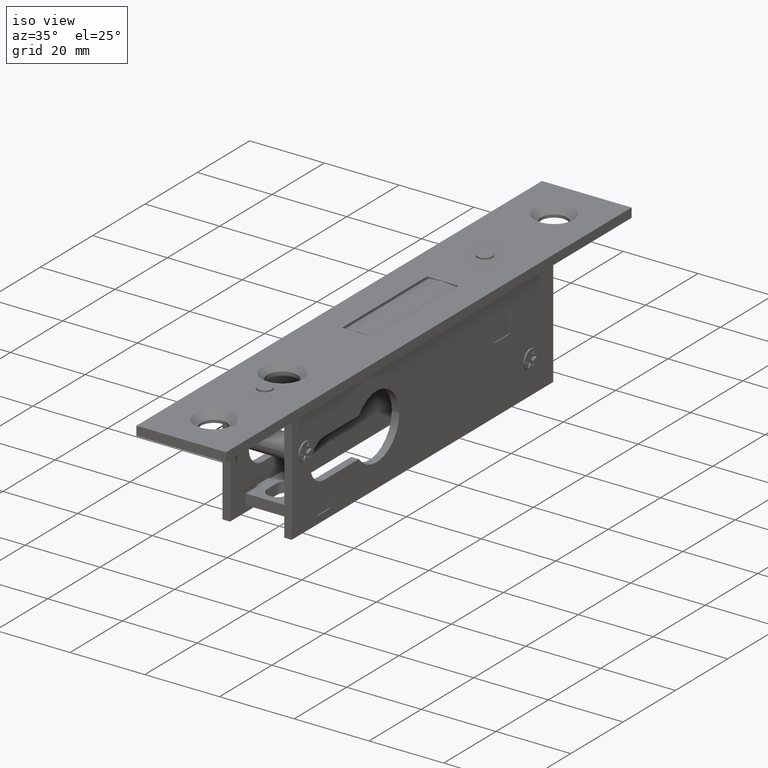
[diagram: clean part render]
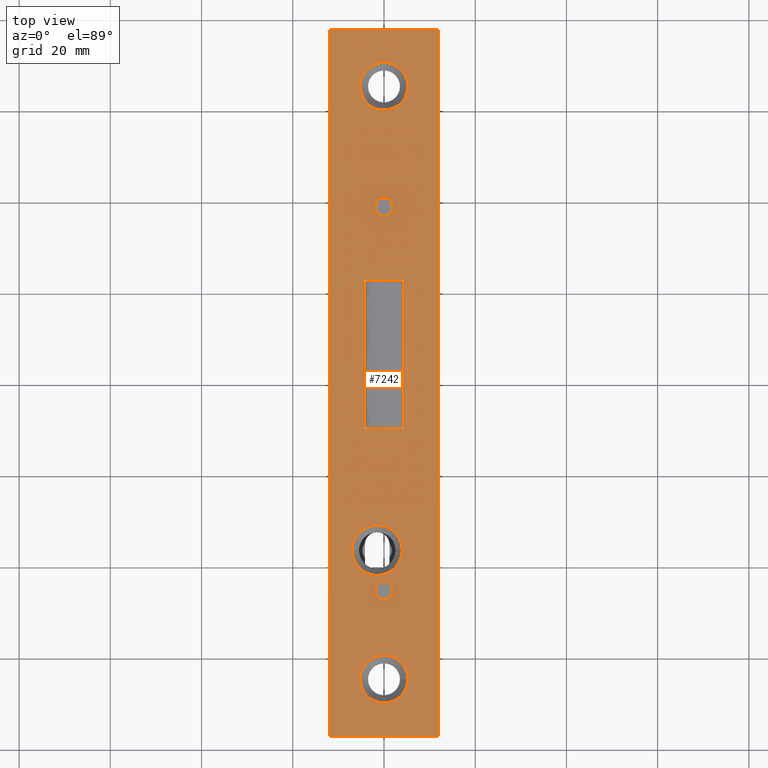
[diagram: tour spotlight — one face highlighted and labeled with its STEP entity id]
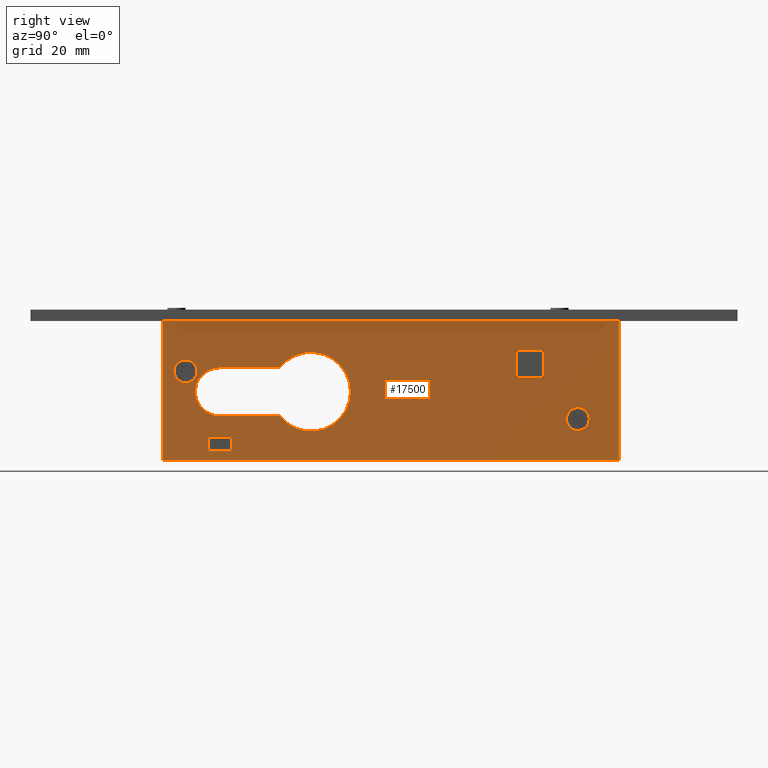
[diagram: tour spotlight — one face highlighted and labeled with its STEP entity id]
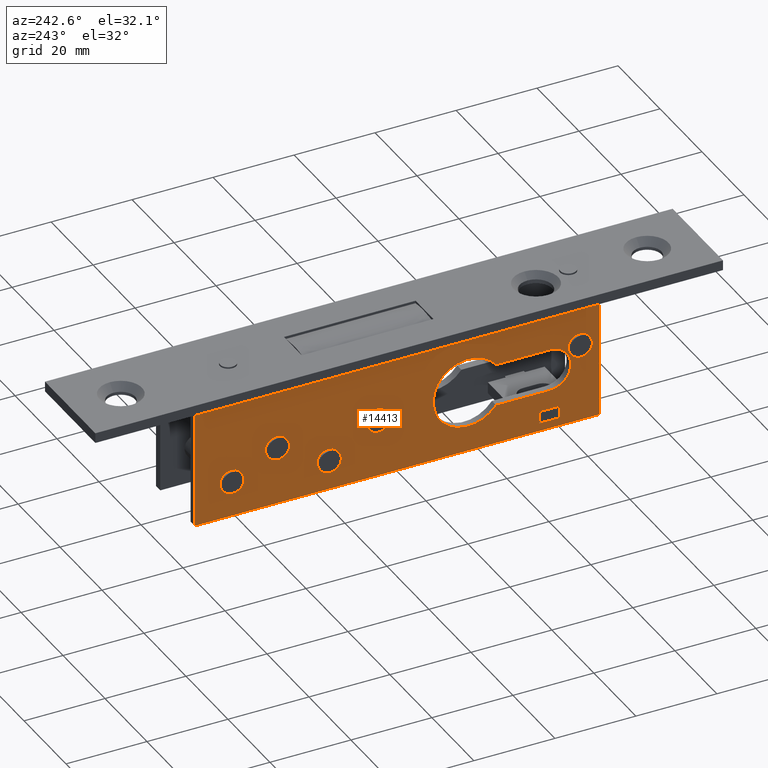
[diagram: tour spotlight — one face highlighted and labeled with its STEP entity id]
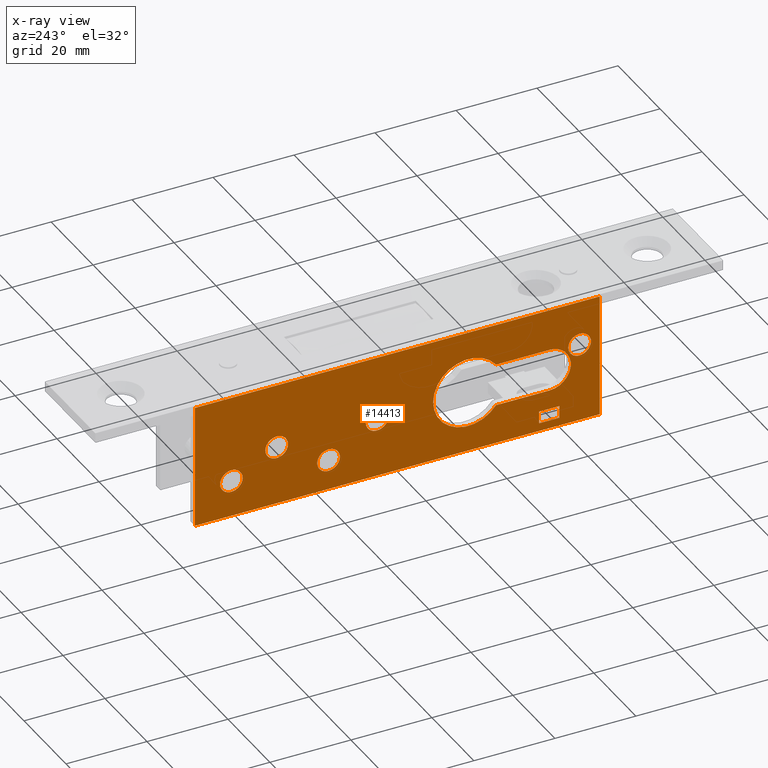
[diagram: x-ray of the same camera — body ghosted, this tour face saturated]
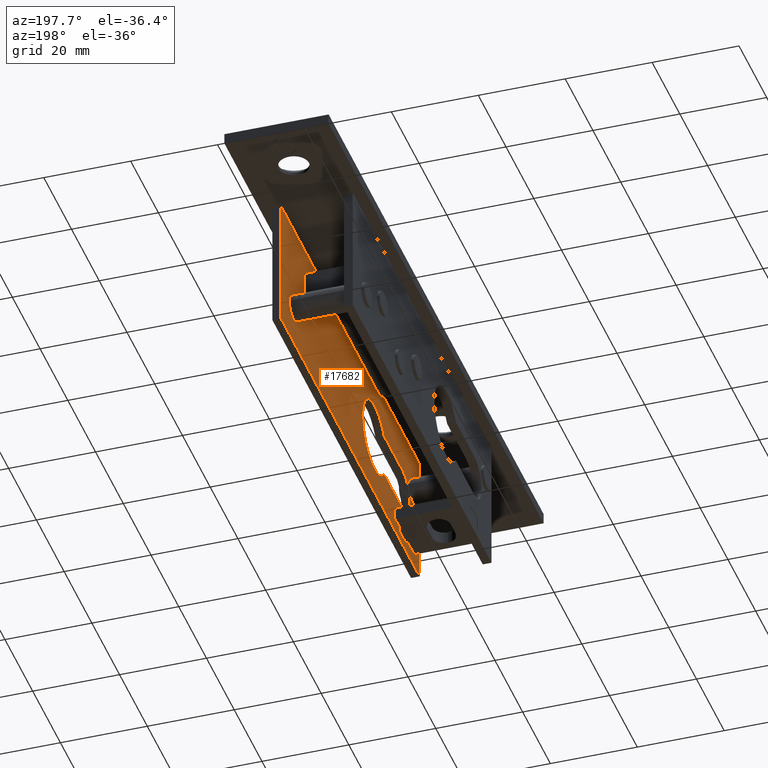
[diagram: tour spotlight — one face highlighted and labeled with its STEP entity id]
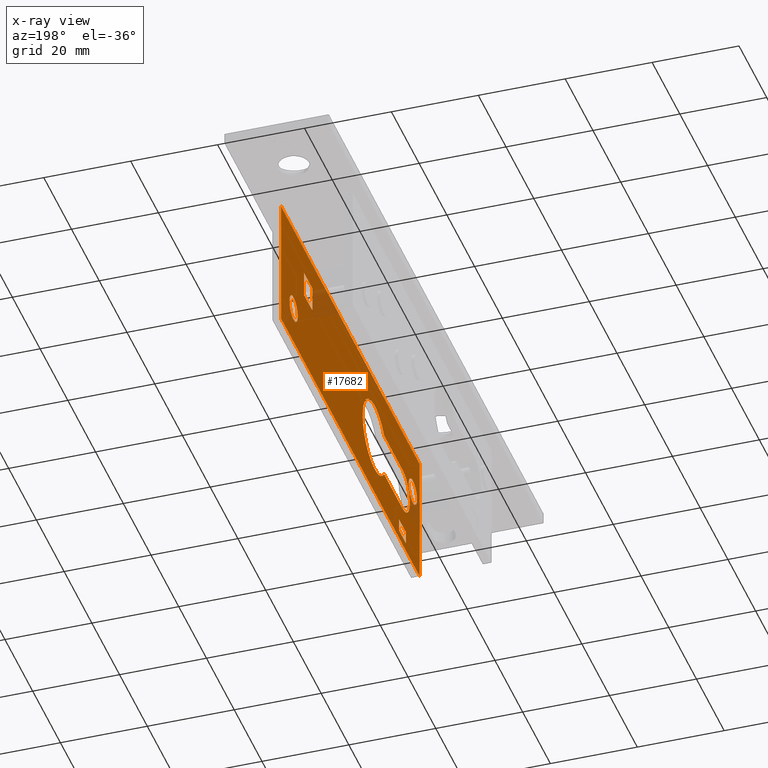
[diagram: x-ray of the same camera — body ghosted, this tour face saturated]
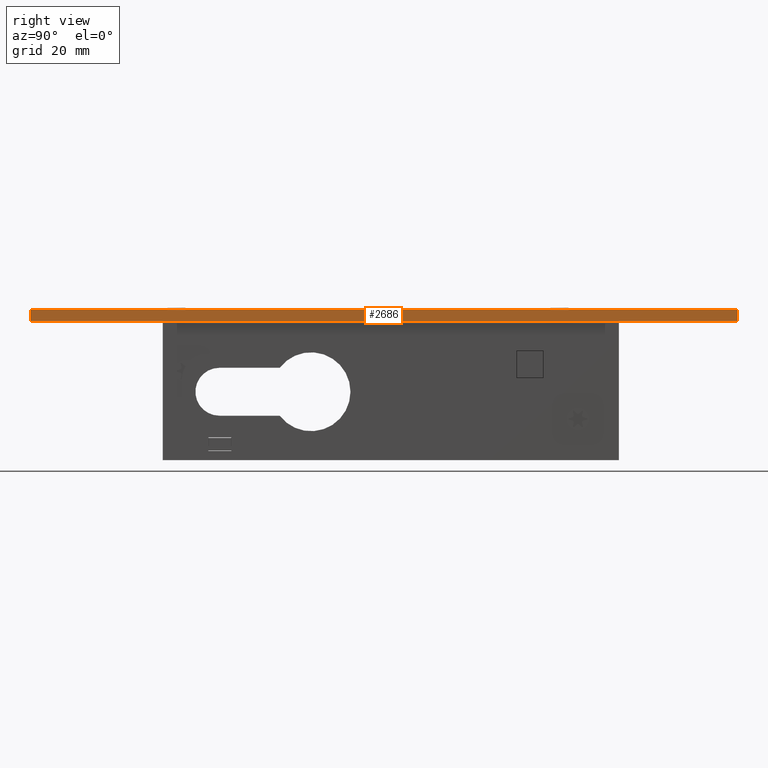
[diagram: tour spotlight — one face highlighted and labeled with its STEP entity id]
A machine part: a face-by-face anatomy tour. The part has 413 B-rep faces; the first image is the clean iso view, then the 5 largest visible faces are spotlighted one at a time (largest first), each with its STEP entity span.

Face 1 — top view, entity #7242. In plain terms, the highlighted planar face has unit normal (-0, 0, 1).
Definition (entity closure, byte-faithful):
#36 = DIRECTION ( 'NONE',  ( 1.000000000000000000, 0.000000000000000000, 0.000000000000000000 ) ) ;
#159 = CARTESIAN_POINT ( 'NONE',  ( 4.249999999999985789, 22.50000000000000000, 2.500000000000000000 ) ) ;
#283 = CIRCLE ( 'NONE', #3527, 5.250000000000033751 ) ;
#338 = DIRECTION ( 'NONE',  ( 1.000000000000000000, 0.000000000000000000, 0.000000000000000000 ) ) ;
#493 = CARTESIAN_POINT ( 'NONE',  ( -5.250000000000059508, 65.00000000000000000, 2.500000000000000000 ) ) ;
#743 = EDGE_CURVE ( 'NONE', #9474, #2416, #15068, .T. ) ;
#768 = CIRCLE ( 'NONE', #12472, 2.000000000000001332 ) ;
#923 = ORIENTED_EDGE ( 'NONE', *, *, #14103, .T. ) ;
#936 = DIRECTION ( 'NONE',  ( 0.000000000000000000, -0.000000000000000000, -1.000000000000000000 ) ) ;
#1119 = CIRCLE ( 'NONE', #15562, 2.000000000000001332 ) ;
#1195 = VERTEX_POINT ( 'NONE', #7335 ) ;
#1237 = EDGE_CURVE ( 'NONE', #10560, #9473, #2099, .T. ) ;
#1315 = DIRECTION ( 'NONE',  ( -1.231094079725476018E-16, 1.000000000000000000, -0.000000000000000000 ) ) ;
#1324 = CARTESIAN_POINT ( 'NONE',  ( 2.000000000000001332, -45.50000000000000000, 2.500000000000000000 ) ) ;
#1364 = CARTESIAN_POINT ( 'NONE',  ( 12.00000000000000888, -77.50000000000000000, 2.500000000000000000 ) ) ;
#1457 = EDGE_CURVE ( 'NONE', #12619, #1195, #6522, .T. ) ;
#1628 = CARTESIAN_POINT ( 'NONE',  ( -2.000000000000001332, -45.50000000000000000, 2.500000000000000000 ) ) ;
#1758 = DIRECTION ( 'NONE',  ( -1.334402673828313093E-16, 1.000000000000000000, -0.000000000000000000 ) ) ;
#1925 = CARTESIAN_POINT ( 'NONE',  ( -11.99999999999998934, -77.50000000000000000, 2.500000000000000000 ) ) ;
#2086 = LINE ( 'NONE', #8342, #15490 ) ;
#2099 = LINE ( 'NONE', #1925, #11775 ) ;
#2382 = EDGE_CURVE ( 'NONE', #12351, #16011, #768, .T. ) ;
#2416 = VERTEX_POINT ( 'NONE', #1324 ) ;
#2477 = CIRCLE ( 'NONE', #15880, 5.500000000000019540 ) ;
#2508 = CARTESIAN_POINT ( 'NONE',  ( -5.250000000000019540, -65.00000000000000000, 2.500000000000000000 ) ) ;
#2515 = VERTEX_POINT ( 'NONE', #9920 ) ;
#2654 = AXIS2_PLACEMENT_3D ( 'NONE', #8014, #17765, #9430 ) ;
#2855 = CARTESIAN_POINT ( 'NONE',  ( -4.250000000000010658, -10.00000000000000178, 2.500000000000000000 ) ) ;
#2907 = AXIS2_PLACEMENT_3D ( 'NONE', #17313, #4565, #338 ) ;
#2921 = ORIENTED_EDGE ( 'NONE', *, *, #15433, .F. ) ;
#3121 = ORIENTED_EDGE ( 'NONE', *, *, #743, .F. ) ;
#3139 = VERTEX_POINT ( 'NONE', #493 ) ;
#3274 = ORIENTED_EDGE ( 'NONE', *, *, #5532, .T. ) ;
#3527 = AXIS2_PLACEMENT_3D ( 'NONE', #11893, #15954, #9187 ) ;
#3654 = CARTESIAN_POINT ( 'NONE',  ( 0.000000000000000000, -45.50000000000000000, 2.500000000000000000 ) ) ;
#3824 = DIRECTION ( 'NONE',  ( 1.000000000000000000, 0.000000000000000000, 0.000000000000000000 ) ) ;
#3953 = CARTESIAN_POINT ( 'NONE',  ( -12.00000000000000711, 77.50000000000000000, 2.500000000000000000 ) ) ;
#4072 = LINE ( 'NONE', #3953, #12880 ) ;
#4565 = DIRECTION ( 'NONE',  ( 0.000000000000000000, 0.000000000000000000, 1.000000000000000000 ) ) ;
#4738 = DIRECTION ( 'NONE',  ( 1.000000000000000000, 0.000000000000000000, 0.000000000000000000 ) ) ;
#4827 = CARTESIAN_POINT ( 'NONE',  ( -2.000000000000001332, 38.50000000000000711, 2.500000000000000000 ) ) ;
#5103 = EDGE_LOOP ( 'NONE', ( #3121, #5343 ) ) ;
#5141 = FACE_BOUND ( 'NONE', #8569, .T. ) ;
#5173 = CARTESIAN_POINT ( 'NONE',  ( -1.500000000000008216, -36.75000000000000711, 2.500000000000000000 ) ) ;
#5343 = ORIENTED_EDGE ( 'NONE', *, *, #18112, .F. ) ;
#5532 = EDGE_CURVE ( 'NONE', #9473, #7030, #16102, .T. ) ;
#5970 = ORIENTED_EDGE ( 'NONE', *, *, #6503, .T. ) ;
#6191 = VECTOR ( 'NONE', #6536, 1000.000000000000000 ) ;
#6503 = EDGE_CURVE ( 'NONE', #3139, #11176, #14403, .T. ) ;
#6522 = LINE ( 'NONE', #159, #8054 ) ;
#6536 = DIRECTION ( 'NONE',  ( -1.000000000000000000, -0.000000000000000000, -0.000000000000000000 ) ) ;
#6593 = DIRECTION ( 'NONE',  ( 0.000000000000000000, 0.000000000000000000, 1.000000000000000000 ) ) ;
#6621 = DIRECTION ( 'NONE',  ( 0.000000000000000000, -0.000000000000000000, -1.000000000000000000 ) ) ;
#6626 = EDGE_CURVE ( 'NONE', #6643, #12619, #2086, .T. ) ;
#6643 = VERTEX_POINT ( 'NONE', #2855 ) ;
#6692 = VERTEX_POINT ( 'NONE', #9642 ) ;
#6856 = EDGE_CURVE ( 'NONE', #6692, #10560, #10875, .T. ) ;
#7030 = VERTEX_POINT ( 'NONE', #8383 ) ;
#7139 = FACE_BOUND ( 'NONE', #5103, .T. ) ;
#7242 = ADVANCED_FACE ( 'NONE', ( #7139, #5141, #9352, #8029, #18065, #11294, #8922 ), #10167, .T. ) ;
#7335 = CARTESIAN_POINT ( 'NONE',  ( 4.249999999999985789, 22.50000000000000000, 2.500000000000000000 ) ) ;
#7375 = VECTOR ( 'NONE', #1315, 1000.000000000000000 ) ;
#7383 = VERTEX_POINT ( 'NONE', #2508 ) ;
#7471 = CARTESIAN_POINT ( 'NONE',  ( 4.000000000000011546, -36.75000000000000711, 2.500000000000000000 ) ) ;
#7719 = AXIS2_PLACEMENT_3D ( 'NONE', #5173, #936, #10887 ) ;
#7797 = EDGE_LOOP ( 'NONE', ( #15592, #923 ) ) ;
#7831 = VECTOR ( 'NONE', #9163, 1000.000000000000000 ) ;
#7930 = ORIENTED_EDGE ( 'NONE', *, *, #13209, .T. ) ;
#8014 = CARTESIAN_POINT ( 'NONE',  ( -2.473421038514932582E-14, 65.00000000000000000, 2.500000000000000000 ) ) ;
#8023 = CARTESIAN_POINT ( 'NONE',  ( 0.000000000000000000, 38.50000000000000711, 2.500000000000000000 ) ) ;
#8029 = FACE_BOUND ( 'NONE', #16213, .T. ) ;
#8054 = VECTOR ( 'NONE', #1758, 1000.000000000000000 ) ;
#8342 = CARTESIAN_POINT ( 'NONE',  ( -4.250000000000010658, -10.00000000000000178, 2.500000000000000000 ) ) ;
#8378 = VERTEX_POINT ( 'NONE', #7471 ) ;
#8383 = CARTESIAN_POINT ( 'NONE',  ( 11.99999999999998934, 77.50000000000000000, 2.500000000000000000 ) ) ;
#8432 = EDGE_CURVE ( 'NONE', #16011, #12351, #9980, .T. ) ;
#8502 = DIRECTION ( 'NONE',  ( 0.000000000000000000, -0.000000000000000000, -1.000000000000000000 ) ) ;
#8510 = DIRECTION ( 'NONE',  ( 0.000000000000000000, -0.000000000000000000, -1.000000000000000000 ) ) ;
#8569 = EDGE_LOOP ( 'NONE', ( #10754, #9481 ) ) ;
#8581 = CARTESIAN_POINT ( 'NONE',  ( 4.249999999999990230, -10.00000000000000178, 2.500000000000000000 ) ) ;
#8766 = DIRECTION ( 'NONE',  ( 1.000000000000000000, 0.000000000000000000, 0.000000000000000000 ) ) ;
#8805 = EDGE_LOOP ( 'NONE', ( #3274, #10750, #12793, #17451 ) ) ;
#8922 = FACE_OUTER_BOUND ( 'NONE', #8805, .T. ) ;
#8989 = LINE ( 'NONE', #12998, #15972 ) ;
#9057 = AXIS2_PLACEMENT_3D ( 'NONE', #17242, #10239, #11488 ) ;
#9163 = DIRECTION ( 'NONE',  ( 1.119176436114069085E-16, -1.000000000000000000, 0.000000000000000000 ) ) ;
#9187 = DIRECTION ( 'NONE',  ( 1.000000000000000000, 0.000000000000000000, 0.000000000000000000 ) ) ;
#9303 = CARTESIAN_POINT ( 'NONE',  ( 0.000000000000000000, -45.50000000000000000, 2.500000000000000000 ) ) ;
#9352 = FACE_BOUND ( 'NONE', #12405, .T. ) ;
#9430 = DIRECTION ( 'NONE',  ( 1.000000000000000000, 0.000000000000000000, 0.000000000000000000 ) ) ;
#9438 = ORIENTED_EDGE ( 'NONE', *, *, #15344, .T. ) ;
#9473 = VERTEX_POINT ( 'NONE', #1364 ) ;
#9474 = VERTEX_POINT ( 'NONE', #1628 ) ;
#9481 = ORIENTED_EDGE ( 'NONE', *, *, #2382, .F. ) ;
#9642 = CARTESIAN_POINT ( 'NONE',  ( -12.00000000000000711, 77.50000000000000000, 2.500000000000000000 ) ) ;
#9771 = CARTESIAN_POINT ( 'NONE',  ( 2.000000000000001332, 38.50000000000000711, 2.500000000000000000 ) ) ;
#9920 = CARTESIAN_POINT ( 'NONE',  ( -7.000000000000027534, -36.75000000000000711, 2.500000000000000000 ) ) ;
#9925 = LINE ( 'NONE', #15036, #6191 ) ;
#9980 = CIRCLE ( 'NONE', #2907, 2.000000000000001332 ) ;
#10167 = PLANE ( 'NONE',  #9057 ) ;
#10239 = DIRECTION ( 'NONE',  ( -0.000000000000000000, 0.000000000000000000, 1.000000000000000000 ) ) ;
#10351 = EDGE_CURVE ( 'NONE', #1195, #15233, #9925, .T. ) ;
#10560 = VERTEX_POINT ( 'NONE', #15442 ) ;
#10750 = ORIENTED_EDGE ( 'NONE', *, *, #15228, .T. ) ;
#10754 = ORIENTED_EDGE ( 'NONE', *, *, #8432, .F. ) ;
#10875 = LINE ( 'NONE', #12002, #7831 ) ;
#10887 = DIRECTION ( 'NONE',  ( 1.000000000000000000, 0.000000000000000000, 0.000000000000000000 ) ) ;
#10917 = CIRCLE ( 'NONE', #12461, 5.250000000000033751 ) ;
#11161 = CARTESIAN_POINT ( 'NONE',  ( 5.250000000000048850, -65.00000000000000000, 2.500000000000000000 ) ) ;
#11176 = VERTEX_POINT ( 'NONE', #15746 ) ;
#11227 = CARTESIAN_POINT ( 'NONE',  ( 11.99999999999998934, 77.50000000000000000, 2.500000000000000000 ) ) ;
#11294 = FACE_BOUND ( 'NONE', #16019, .T. ) ;
#11488 = DIRECTION ( 'NONE',  ( 1.000000000000000000, 0.000000000000000000, 0.000000000000000000 ) ) ;
#11775 = VECTOR ( 'NONE', #4738, 1000.000000000000000 ) ;
#11893 = CARTESIAN_POINT ( 'NONE',  ( 1.506681058713965097E-14, -65.00000000000000000, 2.500000000000000000 ) ) ;
#12002 = CARTESIAN_POINT ( 'NONE',  ( -12.00000000000000711, 77.50000000000000000, 2.500000000000000000 ) ) ;
#12351 = VERTEX_POINT ( 'NONE', #9771 ) ;
#12405 = EDGE_LOOP ( 'NONE', ( #7930, #17535 ) ) ;
#12461 = AXIS2_PLACEMENT_3D ( 'NONE', #15338, #8502, #18068 ) ;
#12472 = AXIS2_PLACEMENT_3D ( 'NONE', #8023, #6593, #15049 ) ;
#12619 = VERTEX_POINT ( 'NONE', #8581 ) ;
#12793 = ORIENTED_EDGE ( 'NONE', *, *, #6856, .T. ) ;
#12880 = VECTOR ( 'NONE', #13791, 1000.000000000000000 ) ;
#12888 = ORIENTED_EDGE ( 'NONE', *, *, #1457, .F. ) ;
#12929 = VERTEX_POINT ( 'NONE', #11161 ) ;
#12948 = ORIENTED_EDGE ( 'NONE', *, *, #10351, .F. ) ;
#12998 = CARTESIAN_POINT ( 'NONE',  ( -4.250000000000015099, 22.50000000000000000, 2.500000000000000000 ) ) ;
#13209 = EDGE_CURVE ( 'NONE', #8378, #2515, #2477, .T. ) ;
#13780 = DIRECTION ( 'NONE',  ( 0.000000000000000000, 0.000000000000000000, 1.000000000000000000 ) ) ;
#13791 = DIRECTION ( 'NONE',  ( -1.000000000000000000, -0.000000000000000000, -0.000000000000000000 ) ) ;
#14103 = EDGE_CURVE ( 'NONE', #7383, #12929, #283, .T. ) ;
#14403 = CIRCLE ( 'NONE', #2654, 5.250000000000033751 ) ;
#14840 = DIRECTION ( 'NONE',  ( 1.000000000000000000, 0.000000000000000000, 0.000000000000000000 ) ) ;
#14984 = CIRCLE ( 'NONE', #15452, 5.250000000000033751 ) ;
#15036 = CARTESIAN_POINT ( 'NONE',  ( -4.250000000000015099, 22.50000000000000000, 2.500000000000000000 ) ) ;
#15049 = DIRECTION ( 'NONE',  ( 1.000000000000000000, 0.000000000000000000, 0.000000000000000000 ) ) ;
#15068 = CIRCLE ( 'NONE', #17411, 2.000000000000001332 ) ;
#15228 = EDGE_CURVE ( 'NONE', #7030, #6692, #4072, .T. ) ;
#15233 = VERTEX_POINT ( 'NONE', #16417 ) ;
#15312 = DIRECTION ( 'NONE',  ( 1.000000000000000000, 0.000000000000000000, 0.000000000000000000 ) ) ;
#15338 = CARTESIAN_POINT ( 'NONE',  ( -2.473421038514932582E-14, 65.00000000000000000, 2.500000000000000000 ) ) ;
#15344 = EDGE_CURVE ( 'NONE', #11176, #3139, #10917, .T. ) ;
#15433 = EDGE_CURVE ( 'NONE', #15233, #6643, #8989, .T. ) ;
#15442 = CARTESIAN_POINT ( 'NONE',  ( -11.99999999999998934, -77.50000000000000000, 2.500000000000000000 ) ) ;
#15452 = AXIS2_PLACEMENT_3D ( 'NONE', #17100, #8510, #8766 ) ;
#15490 = VECTOR ( 'NONE', #15312, 1000.000000000000000 ) ;
#15562 = AXIS2_PLACEMENT_3D ( 'NONE', #3654, #16340, #3824 ) ;
#15588 = DIRECTION ( 'NONE',  ( 1.334402673828313093E-16, -1.000000000000000000, 0.000000000000000000 ) ) ;
#15592 = ORIENTED_EDGE ( 'NONE', *, *, #17685, .T. ) ;
#15660 = CIRCLE ( 'NONE', #7719, 5.500000000000019540 ) ;
#15746 = CARTESIAN_POINT ( 'NONE',  ( 5.250000000000008882, 65.00000000000000000, 2.500000000000000000 ) ) ;
#15880 = AXIS2_PLACEMENT_3D ( 'NONE', #17627, #6621, #14840 ) ;
#15954 = DIRECTION ( 'NONE',  ( 0.000000000000000000, -0.000000000000000000, -1.000000000000000000 ) ) ;
#15972 = VECTOR ( 'NONE', #15588, 1000.000000000000000 ) ;
#16011 = VERTEX_POINT ( 'NONE', #4827 ) ;
#16019 = EDGE_LOOP ( 'NONE', ( #12888, #17537, #2921, #12948 ) ) ;
#16102 = LINE ( 'NONE', #11227, #7375 ) ;
#16213 = EDGE_LOOP ( 'NONE', ( #9438, #5970 ) ) ;
#16340 = DIRECTION ( 'NONE',  ( 0.000000000000000000, 0.000000000000000000, 1.000000000000000000 ) ) ;
#16417 = CARTESIAN_POINT ( 'NONE',  ( -4.250000000000015099, 22.50000000000000000, 2.500000000000000000 ) ) ;
#17100 = CARTESIAN_POINT ( 'NONE',  ( 1.506681058713965097E-14, -65.00000000000000000, 2.500000000000000000 ) ) ;
#17242 = CARTESIAN_POINT ( 'NONE',  ( 0.000000000000000000, 0.000000000000000000, 2.500000000000000000 ) ) ;
#17313 = CARTESIAN_POINT ( 'NONE',  ( 0.000000000000000000, 38.50000000000000711, 2.500000000000000000 ) ) ;
#17411 = AXIS2_PLACEMENT_3D ( 'NONE', #9303, #13780, #36 ) ;
#17451 = ORIENTED_EDGE ( 'NONE', *, *, #1237, .T. ) ;
#17479 = EDGE_CURVE ( 'NONE', #2515, #8378, #15660, .T. ) ;
#17535 = ORIENTED_EDGE ( 'NONE', *, *, #17479, .T. ) ;
#17537 = ORIENTED_EDGE ( 'NONE', *, *, #6626, .F. ) ;
#17627 = CARTESIAN_POINT ( 'NONE',  ( -1.500000000000008216, -36.75000000000000711, 2.500000000000000000 ) ) ;
#17685 = EDGE_CURVE ( 'NONE', #12929, #7383, #14984, .T. ) ;
#17765 = DIRECTION ( 'NONE',  ( 0.000000000000000000, -0.000000000000000000, -1.000000000000000000 ) ) ;
#18065 = FACE_BOUND ( 'NONE', #7797, .T. ) ;
#18068 = DIRECTION ( 'NONE',  ( 1.000000000000000000, 0.000000000000000000, 0.000000000000000000 ) ) ;
#18112 = EDGE_CURVE ( 'NONE', #2416, #9474, #1119, .T. ) ;

Face 2 — right view, entity #17500. In plain terms, the highlighted planar face has unit normal (-1, 0, 0).
Definition (entity closure, byte-faithful):
#95 = CARTESIAN_POINT ( 'NONE',  ( 9.250000000000017764, 40.00000000000000000, -21.50000000000000000 ) ) ;
#336 = ORIENTED_EDGE ( 'NONE', *, *, #14642, .F. ) ;
#585 = LINE ( 'NONE', #8251, #3834 ) ;
#881 = DIRECTION ( 'NONE',  ( -1.000000000000000000, 1.040834085586084503E-16, 0.000000000000000000 ) ) ;
#892 = EDGE_CURVE ( 'NONE', #15952, #13141, #8072, .T. ) ;
#984 = VECTOR ( 'NONE', #15522, 1000.000000000000000 ) ;
#1025 = DIRECTION ( 'NONE',  ( 0.000000000000000000, -1.000000000000000000, 0.000000000000000000 ) ) ;
#1128 = VERTEX_POINT ( 'NONE', #3735 ) ;
#1162 = EDGE_CURVE ( 'NONE', #16344, #14370, #585, .T. ) ;
#1261 = EDGE_CURVE ( 'NONE', #1759, #9464, #4288, .T. ) ;
#1289 = CARTESIAN_POINT ( 'NONE',  ( 9.250000000000019540, 51.50000000000000711, -30.50000000000000000 ) ) ;
#1529 = CARTESIAN_POINT ( 'NONE',  ( 9.250000000000014211, -16.00000000000000000, -15.50000000000000000 ) ) ;
#1545 = AXIS2_PLACEMENT_3D ( 'NONE', #2158, #11986, #16255 ) ;
#1556 = CARTESIAN_POINT ( 'NONE',  ( 9.250000000000017764, 35.00000000000000000, -12.49999999999999645 ) ) ;
#1557 = ORIENTED_EDGE ( 'NONE', *, *, #8316, .T. ) ;
#1591 = LINE ( 'NONE', #17272, #13871 ) ;
#1593 = FACE_BOUND ( 'NONE', #14805, .T. ) ;
#1614 = CIRCLE ( 'NONE', #6413, 5.250000000000004441 ) ;
#1685 = AXIS2_PLACEMENT_3D ( 'NONE', #17838, #881, #12109 ) ;
#1759 = VERTEX_POINT ( 'NONE', #16337 ) ;
#2054 = FACE_BOUND ( 'NONE', #3689, .T. ) ;
#2071 = LINE ( 'NONE', #6112, #15451 ) ;
#2121 = CARTESIAN_POINT ( 'NONE',  ( 9.250000000000010658, -40.99999999999999289, -11.00000000000000000 ) ) ;
#2158 = CARTESIAN_POINT ( 'NONE',  ( 9.250000000000017764, 42.50000000000000000, -21.50000000000000000 ) ) ;
#2208 = ORIENTED_EDGE ( 'NONE', *, *, #9607, .F. ) ;
#2221 = LINE ( 'NONE', #7303, #10385 ) ;
#2231 = VERTEX_POINT ( 'NONE', #17455 ) ;
#2253 = EDGE_CURVE ( 'NONE', #17608, #12709, #16124, .T. ) ;
#2446 = VECTOR ( 'NONE', #10148, 1000.000000000000000 ) ;
#2677 = LINE ( 'NONE', #4732, #11479 ) ;
#2700 = VECTOR ( 'NONE', #7152, 1000.000000000000000 ) ;
#2826 = VERTEX_POINT ( 'NONE', #6997 ) ;
#2951 = VECTOR ( 'NONE', #18034, 1000.000000000000000 ) ;
#2986 = EDGE_CURVE ( 'NONE', #9464, #1759, #15927, .T. ) ;
#3029 = VERTEX_POINT ( 'NONE', #15611 ) ;
#3034 = ORIENTED_EDGE ( 'NONE', *, *, #12175, .F. ) ;
#3390 = CARTESIAN_POINT ( 'NONE',  ( 9.250000000000017764, 29.00000000000000355, -12.50000000000000000 ) ) ;
#3474 = CARTESIAN_POINT ( 'NONE',  ( 9.250000000000010658, -46.00000000000000000, -11.00000000000000000 ) ) ;
#3558 = ORIENTED_EDGE ( 'NONE', *, *, #12954, .F. ) ;
#3579 = LINE ( 'NONE', #11423, #2700 ) ;
#3689 = EDGE_LOOP ( 'NONE', ( #16584, #16859 ) ) ;
#3735 = CARTESIAN_POINT ( 'NONE',  ( 9.250000000000012434, -33.49999999999998579, -28.49999999999999645 ) ) ;
#3800 = EDGE_CURVE ( 'NONE', #15801, #5711, #1614, .T. ) ;
#3834 = VECTOR ( 'NONE', #18130, 1000.000000000000000 ) ;
#4087 = CARTESIAN_POINT ( 'NONE',  ( 9.250000000000014211, -16.00000000000000000, -15.50000000000000000 ) ) ;
#4093 = CARTESIAN_POINT ( 'NONE',  ( 9.250000000000017764, 29.00000000000000355, -6.500000000000002665 ) ) ;
#4123 = ORIENTED_EDGE ( 'NONE', *, *, #12783, .F. ) ;
#4244 = EDGE_CURVE ( 'NONE', #2826, #2231, #5813, .T. ) ;
#4288 = CIRCLE ( 'NONE', #10511, 2.500000000000002220 ) ;
#4717 = DIRECTION ( 'NONE',  ( -1.040834085586084257E-16, -1.000000000000000000, -0.000000000000000000 ) ) ;
#4732 = CARTESIAN_POINT ( 'NONE',  ( 9.250000000000017764, 35.00000000000000000, -6.500000000000002665 ) ) ;
#4776 = CARTESIAN_POINT ( 'NONE',  ( 9.250000000000010658, -43.50000000000000000, -11.00000000000000000 ) ) ;
#4799 = CARTESIAN_POINT ( 'NONE',  ( 9.250000000000019540, 51.50000000000000711, 0.000000000000000000 ) ) ;
#4836 = CARTESIAN_POINT ( 'NONE',  ( 9.250000000000010658, -43.50000000000000000, -11.00000000000000000 ) ) ;
#4851 = VERTEX_POINT ( 'NONE', #10277 ) ;
#5118 = CARTESIAN_POINT ( 'NONE',  ( 9.250000000000012434, -38.50000000000000000, -28.49999999999999645 ) ) ;
#5154 = CIRCLE ( 'NONE', #15294, 8.649999999999998579 ) ;
#5291 = ORIENTED_EDGE ( 'NONE', *, *, #14201, .F. ) ;
#5494 = DIRECTION ( 'NONE',  ( 1.000000000000000000, -1.040834085586084503E-16, -0.000000000000000000 ) ) ;
#5711 = VERTEX_POINT ( 'NONE', #11789 ) ;
#5813 = CIRCLE ( 'NONE', #9945, 8.649999999999998579 ) ;
#6045 = DIRECTION ( 'NONE',  ( -0.000000000000000000, -0.000000000000000000, 1.000000000000000000 ) ) ;
#6112 = CARTESIAN_POINT ( 'NONE',  ( 9.250000000000017764, 35.00000000000000000, -6.500000000000002665 ) ) ;
#6141 = ORIENTED_EDGE ( 'NONE', *, *, #17875, .F. ) ;
#6413 = AXIS2_PLACEMENT_3D ( 'NONE', #13518, #16377, #8081 ) ;
#6482 = CARTESIAN_POINT ( 'NONE',  ( 9.250000000000012434, -33.50000000000000000, -25.49999999999999645 ) ) ;
#6814 = DIRECTION ( 'NONE',  ( 2.005460665869141534E-16, 1.000000000000000000, 0.000000000000000000 ) ) ;
#6997 = CARTESIAN_POINT ( 'NONE',  ( 9.250000000000015987, -7.350000000000002309, -15.50000000000000000 ) ) ;
#7152 = DIRECTION ( 'NONE',  ( -0.000000000000000000, 1.000000000000000000, -0.000000000000000000 ) ) ;
#7303 = CARTESIAN_POINT ( 'NONE',  ( 9.250000000000019540, 51.50000000000000711, -30.50000000000000000 ) ) ;
#7319 = CARTESIAN_POINT ( 'NONE',  ( 9.250000000000010658, -48.50000000000000000, -30.50000000000000000 ) ) ;
#7346 = AXIS2_PLACEMENT_3D ( 'NONE', #4776, #7635, #10550 ) ;
#7557 = LINE ( 'NONE', #7319, #2446 ) ;
#7616 = LINE ( 'NONE', #11216, #984 ) ;
#7635 = DIRECTION ( 'NONE',  ( 1.000000000000000000, -1.040834085586084503E-16, -0.000000000000000000 ) ) ;
#7760 = VERTEX_POINT ( 'NONE', #4093 ) ;
#7819 = EDGE_CURVE ( 'NONE', #13604, #9511, #3579, .T. ) ;
#7936 = CARTESIAN_POINT ( 'NONE',  ( 9.250000000000012434, -38.50000000000000711, -25.50000000000000000 ) ) ;
#7943 = DIRECTION ( 'NONE',  ( 0.000000000000000000, 2.312964634635743450E-15, -1.000000000000000000 ) ) ;
#7990 = VECTOR ( 'NONE', #14650, 1000.000000000000000 ) ;
#8072 = CIRCLE ( 'NONE', #7346, 2.500000000000002220 ) ;
#8081 = DIRECTION ( 'NONE',  ( 0.000000000000000000, 1.000000000000000000, 0.000000000000000000 ) ) ;
#8251 = CARTESIAN_POINT ( 'NONE',  ( 9.250000000000012434, -33.50000000000000000, -25.49999999999999645 ) ) ;
#8316 = EDGE_CURVE ( 'NONE', #12709, #15571, #1591, .T. ) ;
#8410 = ORIENTED_EDGE ( 'NONE', *, *, #12352, .F. ) ;
#8460 = VECTOR ( 'NONE', #17245, 1000.000000000000000 ) ;
#8656 = VECTOR ( 'NONE', #7943, 1000.000000000000000 ) ;
#9090 = LINE ( 'NONE', #10851, #14755 ) ;
#9119 = FACE_BOUND ( 'NONE', #12683, .T. ) ;
#9122 = ORIENTED_EDGE ( 'NONE', *, *, #9143, .F. ) ;
#9133 = LINE ( 'NONE', #10296, #8460 ) ;
#9143 = EDGE_CURVE ( 'NONE', #4851, #15571, #7557, .T. ) ;
#9357 = ORIENTED_EDGE ( 'NONE', *, *, #2253, .T. ) ;
#9464 = VERTEX_POINT ( 'NONE', #95 ) ;
#9511 = VERTEX_POINT ( 'NONE', #1556 ) ;
#9607 = EDGE_CURVE ( 'NONE', #17608, #4851, #2221, .T. ) ;
#9671 = CARTESIAN_POINT ( 'NONE',  ( 9.250000000000014211, -22.87459089691888536, -20.74999999999999645 ) ) ;
#9800 = DIRECTION ( 'NONE',  ( 2.005460665869141534E-16, 1.000000000000000000, 0.000000000000000000 ) ) ;
#9813 = ORIENTED_EDGE ( 'NONE', *, *, #16731, .F. ) ;
#9861 = DIRECTION ( 'NONE',  ( 1.000000000000000000, -1.040834085586084257E-16, 0.000000000000000000 ) ) ;
#9945 = AXIS2_PLACEMENT_3D ( 'NONE', #1529, #9861, #9800 ) ;
#9981 = FACE_OUTER_BOUND ( 'NONE', #11452, .T. ) ;
#10148 = DIRECTION ( 'NONE',  ( -0.000000000000000000, -0.000000000000000000, 1.000000000000000000 ) ) ;
#10277 = CARTESIAN_POINT ( 'NONE',  ( 9.250000000000010658, -48.50000000000000000, -30.50000000000000000 ) ) ;
#10296 = CARTESIAN_POINT ( 'NONE',  ( 9.250000000000017764, 29.00000000000000355, -6.500000000000002665 ) ) ;
#10330 = DIRECTION ( 'NONE',  ( 1.000000000000000000, -1.040834085586084503E-16, -0.000000000000000000 ) ) ;
#10333 = CARTESIAN_POINT ( 'NONE',  ( 9.250000000000010658, -48.50000000000000000, 0.000000000000000000 ) ) ;
#10385 = VECTOR ( 'NONE', #17073, 1000.000000000000000 ) ;
#10511 = AXIS2_PLACEMENT_3D ( 'NONE', #16182, #5494, #1025 ) ;
#10550 = DIRECTION ( 'NONE',  ( 0.000000000000000000, -1.000000000000000000, 0.000000000000000000 ) ) ;
#10791 = EDGE_LOOP ( 'NONE', ( #8410, #16202, #10976, #10840, #3034 ) ) ;
#10840 = ORIENTED_EDGE ( 'NONE', *, *, #4244, .F. ) ;
#10851 = CARTESIAN_POINT ( 'NONE',  ( 9.250000000000012434, -36.10000000000000142, -10.24999999999999822 ) ) ;
#10852 = LINE ( 'NONE', #17034, #17422 ) ;
#10976 = ORIENTED_EDGE ( 'NONE', *, *, #14248, .F. ) ;
#11178 = CARTESIAN_POINT ( 'NONE',  ( 9.250000000000019540, 51.50000000000000711, -30.50000000000000000 ) ) ;
#11216 = CARTESIAN_POINT ( 'NONE',  ( 9.250000000000014211, -22.87459089691888536, -20.74999999999999645 ) ) ;
#11423 = CARTESIAN_POINT ( 'NONE',  ( 9.250000000000017764, 35.00000000000000000, -12.50000000000000000 ) ) ;
#11452 = EDGE_LOOP ( 'NONE', ( #1557, #9122, #2208, #9357 ) ) ;
#11479 = VECTOR ( 'NONE', #17403, 1000.000000000000000 ) ;
#11789 = CARTESIAN_POINT ( 'NONE',  ( 9.250000000000012434, -36.10000000000000142, -20.75000000000000711 ) ) ;
#11929 = FACE_BOUND ( 'NONE', #16503, .T. ) ;
#11971 = CARTESIAN_POINT ( 'NONE',  ( 9.250000000000012434, -38.50000000000000711, -25.50000000000000000 ) ) ;
#11986 = DIRECTION ( 'NONE',  ( 1.000000000000000000, -1.040834085586084503E-16, -0.000000000000000000 ) ) ;
#12109 = DIRECTION ( 'NONE',  ( -1.040834085586084503E-16, -1.000000000000000000, 0.000000000000000000 ) ) ;
#12175 = EDGE_CURVE ( 'NONE', #17584, #2826, #5154, .T. ) ;
#12344 = FACE_BOUND ( 'NONE', #10791, .T. ) ;
#12352 = EDGE_CURVE ( 'NONE', #5711, #17584, #7616, .T. ) ;
#12516 = VERTEX_POINT ( 'NONE', #5118 ) ;
#12683 = EDGE_LOOP ( 'NONE', ( #13584, #14934 ) ) ;
#12709 = VERTEX_POINT ( 'NONE', #4799 ) ;
#12782 = ORIENTED_EDGE ( 'NONE', *, *, #7819, .F. ) ;
#12783 = EDGE_CURVE ( 'NONE', #7760, #13604, #9133, .T. ) ;
#12954 = EDGE_CURVE ( 'NONE', #1128, #16344, #10852, .T. ) ;
#13065 = DIRECTION ( 'NONE',  ( 0.000000000000000000, -1.000000000000000000, 0.000000000000000000 ) ) ;
#13141 = VERTEX_POINT ( 'NONE', #3474 ) ;
#13182 = EDGE_CURVE ( 'NONE', #13141, #15952, #13687, .T. ) ;
#13239 = ORIENTED_EDGE ( 'NONE', *, *, #1162, .F. ) ;
#13518 = CARTESIAN_POINT ( 'NONE',  ( 9.250000000000012434, -36.10000000000000142, -15.50000000000000000 ) ) ;
#13584 = ORIENTED_EDGE ( 'NONE', *, *, #13182, .F. ) ;
#13604 = VERTEX_POINT ( 'NONE', #3390 ) ;
#13687 = CIRCLE ( 'NONE', #14237, 2.500000000000002220 ) ;
#13871 = VECTOR ( 'NONE', #4717, 1000.000000000000000 ) ;
#14056 = CARTESIAN_POINT ( 'NONE',  ( 9.250000000000012434, -36.10000000000000142, -10.24999999999999822 ) ) ;
#14201 = EDGE_CURVE ( 'NONE', #3029, #7760, #2677, .T. ) ;
#14237 = AXIS2_PLACEMENT_3D ( 'NONE', #4836, #10330, #13065 ) ;
#14248 = EDGE_CURVE ( 'NONE', #2231, #15801, #9090, .T. ) ;
#14370 = VERTEX_POINT ( 'NONE', #7936 ) ;
#14642 = EDGE_CURVE ( 'NONE', #12516, #1128, #16477, .T. ) ;
#14650 = DIRECTION ( 'NONE',  ( -0.000000000000000000, 1.000000000000000000, -0.000000000000000000 ) ) ;
#14755 = VECTOR ( 'NONE', #15011, 1000.000000000000000 ) ;
#14805 = EDGE_LOOP ( 'NONE', ( #3558, #336, #6141, #13239 ) ) ;
#14926 = PLANE ( 'NONE',  #1685 ) ;
#14934 = ORIENTED_EDGE ( 'NONE', *, *, #892, .F. ) ;
#15011 = DIRECTION ( 'NONE',  ( -1.311659595900643701E-16, -1.000000000000000000, -0.000000000000000000 ) ) ;
#15294 = AXIS2_PLACEMENT_3D ( 'NONE', #4087, #18128, #6814 ) ;
#15451 = VECTOR ( 'NONE', #6045, 1000.000000000000000 ) ;
#15522 = DIRECTION ( 'NONE',  ( 1.311659595900643948E-16, 1.000000000000000000, 5.246638383602575790E-16 ) ) ;
#15571 = VERTEX_POINT ( 'NONE', #10333 ) ;
#15611 = CARTESIAN_POINT ( 'NONE',  ( 9.250000000000017764, 35.00000000000000000, -6.500000000000002665 ) ) ;
#15801 = VERTEX_POINT ( 'NONE', #14056 ) ;
#15819 = DIRECTION ( 'NONE',  ( -0.000000000000000000, -0.000000000000000000, 1.000000000000000000 ) ) ;
#15927 = CIRCLE ( 'NONE', #1545, 2.500000000000002220 ) ;
#15952 = VERTEX_POINT ( 'NONE', #2121 ) ;
#16078 = LINE ( 'NONE', #11971, #8656 ) ;
#16124 = LINE ( 'NONE', #1289, #2951 ) ;
#16182 = CARTESIAN_POINT ( 'NONE',  ( 9.250000000000017764, 42.50000000000000000, -21.50000000000000000 ) ) ;
#16202 = ORIENTED_EDGE ( 'NONE', *, *, #3800, .F. ) ;
#16255 = DIRECTION ( 'NONE',  ( 0.000000000000000000, -1.000000000000000000, 0.000000000000000000 ) ) ;
#16337 = CARTESIAN_POINT ( 'NONE',  ( 9.250000000000017764, 45.00000000000000711, -21.50000000000000000 ) ) ;
#16344 = VERTEX_POINT ( 'NONE', #6482 ) ;
#16377 = DIRECTION ( 'NONE',  ( 1.000000000000000000, -1.040834085586084257E-16, 0.000000000000000000 ) ) ;
#16477 = LINE ( 'NONE', #17384, #7990 ) ;
#16503 = EDGE_LOOP ( 'NONE', ( #9813, #12782, #4123, #5291 ) ) ;
#16584 = ORIENTED_EDGE ( 'NONE', *, *, #2986, .F. ) ;
#16731 = EDGE_CURVE ( 'NONE', #9511, #3029, #2071, .T. ) ;
#16859 = ORIENTED_EDGE ( 'NONE', *, *, #1261, .F. ) ;
#17034 = CARTESIAN_POINT ( 'NONE',  ( 9.250000000000012434, -33.50000000000000000, -25.49999999999999645 ) ) ;
#17073 = DIRECTION ( 'NONE',  ( -1.040834085586084257E-16, -1.000000000000000000, -0.000000000000000000 ) ) ;
#17245 = DIRECTION ( 'NONE',  ( 0.000000000000000000, 0.000000000000000000, -1.000000000000000000 ) ) ;
#17272 = CARTESIAN_POINT ( 'NONE',  ( 9.250000000000019540, 51.50000000000000711, 0.000000000000000000 ) ) ;
#17384 = CARTESIAN_POINT ( 'NONE',  ( 9.250000000000012434, -33.50000000000000000, -28.49999999999999645 ) ) ;
#17403 = DIRECTION ( 'NONE',  ( 0.000000000000000000, -1.000000000000000000, 0.000000000000000000 ) ) ;
#17422 = VECTOR ( 'NONE', #15819, 1000.000000000000000 ) ;
#17455 = CARTESIAN_POINT ( 'NONE',  ( 9.250000000000014211, -22.87459089691888181, -10.24999999999999822 ) ) ;
#17500 = ADVANCED_FACE ( 'NONE', ( #1593, #2054, #9119, #11929, #12344, #9981 ), #14926, .F. ) ;
#17584 = VERTEX_POINT ( 'NONE', #9671 ) ;
#17608 = VERTEX_POINT ( 'NONE', #11178 ) ;
#17838 = CARTESIAN_POINT ( 'NONE',  ( 9.250000000000019540, 51.50000000000000711, -30.50000000000000000 ) ) ;
#17875 = EDGE_CURVE ( 'NONE', #14370, #12516, #16078, .T. ) ;
#18034 = DIRECTION ( 'NONE',  ( -0.000000000000000000, -0.000000000000000000, 1.000000000000000000 ) ) ;
#18128 = DIRECTION ( 'NONE',  ( 1.000000000000000000, -1.040834085586084257E-16, 0.000000000000000000 ) ) ;
#18130 = DIRECTION ( 'NONE',  ( 0.000000000000000000, -1.000000000000000000, -6.938893903907222461E-16 ) ) ;

Face 3 — auxiliary view, entity #14413. An x-ray twin of the same camera follows (body ghosted, this face saturated) — the face is partly hidden behind the body. In plain terms, the highlighted planar face has unit normal (1, -0, 0).
Definition (entity closure, byte-faithful):
#35 = CIRCLE ( 'NONE', #4100, 2.799999999999997158 ) ;
#189 = AXIS2_PLACEMENT_3D ( 'NONE', #6609, #5003, #2352 ) ;
#282 = CARTESIAN_POINT ( 'NONE',  ( -9.249999999999982236, 6.500000000000006217, -16.00000000000000000 ) ) ;
#323 = VECTOR ( 'NONE', #14461, 1000.000000000000000 ) ;
#446 = CARTESIAN_POINT ( 'NONE',  ( -9.249999999999985789, -22.87459089691887826, -20.75000000000000000 ) ) ;
#537 = AXIS2_PLACEMENT_3D ( 'NONE', #12943, #10231, #17297 ) ;
#664 = DIRECTION ( 'NONE',  ( -0.000000000000000000, 0.000000000000000000, 1.000000000000000000 ) ) ;
#677 = VERTEX_POINT ( 'NONE', #2811 ) ;
#781 = EDGE_LOOP ( 'NONE', ( #10163, #13273, #3840, #8588, #17376 ) ) ;
#841 = EDGE_CURVE ( 'NONE', #8662, #16272, #4966, .T. ) ;
#954 = EDGE_LOOP ( 'NONE', ( #4267, #3588 ) ) ;
#957 = VERTEX_POINT ( 'NONE', #17794 ) ;
#1048 = ORIENTED_EDGE ( 'NONE', *, *, #1598, .T. ) ;
#1070 = DIRECTION ( 'NONE',  ( -0.000000000000000000, -0.000000000000000000, 1.000000000000000000 ) ) ;
#1106 = CARTESIAN_POINT ( 'NONE',  ( -9.249999999999985789, -15.99999999999999645, -15.50000000000000000 ) ) ;
#1168 = VECTOR ( 'NONE', #1446, 1000.000000000000000 ) ;
#1181 = CARTESIAN_POINT ( 'NONE',  ( -9.249999999999989342, -48.50000000000000000, -30.50000000000000000 ) ) ;
#1239 = PLANE ( 'NONE',  #13536 ) ;
#1252 = VERTEX_POINT ( 'NONE', #2252 ) ;
#1379 = EDGE_CURVE ( 'NONE', #677, #6420, #5375, .T. ) ;
#1446 = DIRECTION ( 'NONE',  ( 1.214306433183764966E-16, 1.000000000000000000, 5.246638383602575790E-16 ) ) ;
#1588 = CARTESIAN_POINT ( 'NONE',  ( -9.249999999999978684, 45.29999999999999716, -21.50000000000000000 ) ) ;
#1596 = CARTESIAN_POINT ( 'NONE',  ( -9.249999999999978684, 34.10000000000000853, -16.00000000000000000 ) ) ;
#1598 = EDGE_CURVE ( 'NONE', #11572, #3283, #17873, .T. ) ;
#1654 = VECTOR ( 'NONE', #1070, 1000.000000000000000 ) ;
#1842 = CARTESIAN_POINT ( 'NONE',  ( -9.249999999999989342, -46.29999999999999716, -11.00000000000000000 ) ) ;
#1848 = CARTESIAN_POINT ( 'NONE',  ( -9.249999999999989342, -48.50000000000000000, -30.50000000000000000 ) ) ;
#1918 = ORIENTED_EDGE ( 'NONE', *, *, #2955, .F. ) ;
#2028 = CARTESIAN_POINT ( 'NONE',  ( -9.249999999999980460, 21.30000000000000782, -23.00000000000000000 ) ) ;
#2104 = CIRCLE ( 'NONE', #189, 2.800000000000002931 ) ;
#2252 = CARTESIAN_POINT ( 'NONE',  ( -9.249999999999987566, -36.10000000000000142, -10.24999999999999822 ) ) ;
#2352 = DIRECTION ( 'NONE',  ( 0.000000000000000000, 1.000000000000000000, 0.000000000000000000 ) ) ;
#2462 = LINE ( 'NONE', #18118, #5121 ) ;
#2467 = VERTEX_POINT ( 'NONE', #2028 ) ;
#2486 = EDGE_CURVE ( 'NONE', #2467, #4416, #2716, .T. ) ;
#2533 = DIRECTION ( 'NONE',  ( 1.000000000000000000, -1.214306433183764966E-16, 0.000000000000000000 ) ) ;
#2671 = CARTESIAN_POINT ( 'NONE',  ( -9.249999999999976907, 51.50000000000000000, -20.74999999999996447 ) ) ;
#2716 = CIRCLE ( 'NONE', #15680, 2.800000000000003819 ) ;
#2811 = CARTESIAN_POINT ( 'NONE',  ( -9.249999999999976907, 51.50000000000000711, -30.50000000000000000 ) ) ;
#2813 = CARTESIAN_POINT ( 'NONE',  ( -9.249999999999978684, 28.50000000000001066, -16.00000000000000000 ) ) ;
#2824 = ORIENTED_EDGE ( 'NONE', *, *, #14613, .F. ) ;
#2834 = AXIS2_PLACEMENT_3D ( 'NONE', #12785, #8600, #5826 ) ;
#2861 = ORIENTED_EDGE ( 'NONE', *, *, #6728, .F. ) ;
#2898 = FACE_BOUND ( 'NONE', #15107, .T. ) ;
#2955 = EDGE_CURVE ( 'NONE', #5684, #677, #15488, .T. ) ;
#3028 = DIRECTION ( 'NONE',  ( -1.214306433183764966E-16, -1.000000000000000000, 0.000000000000000000 ) ) ;
#3037 = VERTEX_POINT ( 'NONE', #12774 ) ;
#3283 = VERTEX_POINT ( 'NONE', #11888 ) ;
#3291 = CARTESIAN_POINT ( 'NONE',  ( -9.249999999999987566, -36.10000000000000142, -20.75000000000000355 ) ) ;
#3346 = FACE_BOUND ( 'NONE', #16727, .T. ) ;
#3404 = VECTOR ( 'NONE', #13611, 1000.000000000000000 ) ;
#3468 = DIRECTION ( 'NONE',  ( 1.214306433183764966E-16, 1.000000000000000000, 0.000000000000000000 ) ) ;
#3540 = EDGE_CURVE ( 'NONE', #6167, #957, #5359, .T. ) ;
#3588 = ORIENTED_EDGE ( 'NONE', *, *, #10289, .F. ) ;
#3728 = DIRECTION ( 'NONE',  ( 0.000000000000000000, 1.000000000000000000, 0.000000000000000000 ) ) ;
#3840 = ORIENTED_EDGE ( 'NONE', *, *, #12350, .T. ) ;
#3927 = ORIENTED_EDGE ( 'NONE', *, *, #8412, .F. ) ;
#3956 = FACE_BOUND ( 'NONE', #15688, .T. ) ;
#4023 = CIRCLE ( 'NONE', #16180, 2.800000000000002931 ) ;
#4034 = EDGE_CURVE ( 'NONE', #8700, #10732, #8222, .T. ) ;
#4100 = AXIS2_PLACEMENT_3D ( 'NONE', #17963, #12452, #11004 ) ;
#4132 = VERTEX_POINT ( 'NONE', #6722 ) ;
#4227 = DIRECTION ( 'NONE',  ( 2.005460665869141534E-16, 1.000000000000000000, 0.000000000000000000 ) ) ;
#4267 = ORIENTED_EDGE ( 'NONE', *, *, #4034, .F. ) ;
#4416 = VERTEX_POINT ( 'NONE', #11740 ) ;
#4469 = EDGE_CURVE ( 'NONE', #1252, #8338, #9764, .T. ) ;
#4522 = DIRECTION ( 'NONE',  ( 0.000000000000000000, 1.000000000000000000, 0.000000000000000000 ) ) ;
#4638 = CIRCLE ( 'NONE', #6580, 2.799999999999997158 ) ;
#4649 = EDGE_CURVE ( 'NONE', #957, #11572, #2462, .T. ) ;
#4677 = CARTESIAN_POINT ( 'NONE',  ( -9.249999999999984013, -22.87459089691887826, -10.24999999999999822 ) ) ;
#4689 = DIRECTION ( 'NONE',  ( -1.000000000000000000, 1.214306433183764966E-16, -0.000000000000000000 ) ) ;
#4723 = EDGE_CURVE ( 'NONE', #3037, #9259, #15887, .T. ) ;
#4736 = LINE ( 'NONE', #1181, #11765 ) ;
#4739 = DIRECTION ( 'NONE',  ( -1.000000000000000000, 1.214306433183764966E-16, -0.000000000000000000 ) ) ;
#4796 = EDGE_LOOP ( 'NONE', ( #10747, #9482 ) ) ;
#4908 = DIRECTION ( 'NONE',  ( 1.000000000000000000, -1.214306433183764966E-16, 0.000000000000000000 ) ) ;
#4966 = CIRCLE ( 'NONE', #5419, 8.649999999999998579 ) ;
#5003 = DIRECTION ( 'NONE',  ( -1.000000000000000000, 1.214306433183764966E-16, -0.000000000000000000 ) ) ;
#5121 = VECTOR ( 'NONE', #15460, 1000.000000000000000 ) ;
#5210 = EDGE_CURVE ( 'NONE', #8825, #1252, #9833, .T. ) ;
#5266 = DIRECTION ( 'NONE',  ( -1.000000000000000000, 1.214306433183764966E-16, -0.000000000000000000 ) ) ;
#5359 = LINE ( 'NONE', #12970, #323 ) ;
#5375 = LINE ( 'NONE', #11093, #1654 ) ;
#5419 = AXIS2_PLACEMENT_3D ( 'NONE', #18131, #11114, #4227 ) ;
#5585 = CIRCLE ( 'NONE', #9354, 8.649999999999998579 ) ;
#5657 = CIRCLE ( 'NONE', #8056, 2.800000000000003819 ) ;
#5684 = VERTEX_POINT ( 'NONE', #1848 ) ;
#5826 = DIRECTION ( 'NONE',  ( 0.000000000000000000, 1.000000000000000000, 0.000000000000000000 ) ) ;
#5837 = CARTESIAN_POINT ( 'NONE',  ( -9.249999999999987566, -38.50000000000000000, -28.49999999999999645 ) ) ;
#6167 = VERTEX_POINT ( 'NONE', #13342 ) ;
#6202 = EDGE_CURVE ( 'NONE', #17713, #10166, #2104, .T. ) ;
#6216 = FACE_BOUND ( 'NONE', #781, .T. ) ;
#6267 = ORIENTED_EDGE ( 'NONE', *, *, #6202, .F. ) ;
#6289 = VERTEX_POINT ( 'NONE', #17678 ) ;
#6420 = VERTEX_POINT ( 'NONE', #9873 ) ;
#6580 = AXIS2_PLACEMENT_3D ( 'NONE', #9375, #5266, #3728 ) ;
#6609 = CARTESIAN_POINT ( 'NONE',  ( -9.249999999999982236, 6.500000000000006217, -16.00000000000000000 ) ) ;
#6703 = EDGE_CURVE ( 'NONE', #5684, #6289, #4736, .T. ) ;
#6722 = CARTESIAN_POINT ( 'NONE',  ( -9.249999999999978684, 39.70000000000000284, -21.50000000000000000 ) ) ;
#6728 = EDGE_CURVE ( 'NONE', #10166, #17713, #4023, .T. ) ;
#6826 = ORIENTED_EDGE ( 'NONE', *, *, #14481, .F. ) ;
#6848 = FACE_BOUND ( 'NONE', #954, .T. ) ;
#6900 = AXIS2_PLACEMENT_3D ( 'NONE', #14228, #12736, #8750 ) ;
#6993 = ORIENTED_EDGE ( 'NONE', *, *, #6703, .T. ) ;
#7163 = VECTOR ( 'NONE', #664, 1000.000000000000000 ) ;
#7302 = DIRECTION ( 'NONE',  ( -0.000000000000000000, -0.000000000000000000, 1.000000000000000000 ) ) ;
#7374 = EDGE_CURVE ( 'NONE', #6289, #6420, #15471, .T. ) ;
#7424 = VECTOR ( 'NONE', #3028, 1000.000000000000000 ) ;
#7447 = ORIENTED_EDGE ( 'NONE', *, *, #15973, .T. ) ;
#7707 = DIRECTION ( 'NONE',  ( 0.000000000000000000, 1.000000000000000000, 0.000000000000000000 ) ) ;
#8056 = AXIS2_PLACEMENT_3D ( 'NONE', #17349, #8996, #11791 ) ;
#8174 = CARTESIAN_POINT ( 'NONE',  ( -9.249999999999976907, 51.50000000000000711, 0.000000000000000000 ) ) ;
#8218 = CARTESIAN_POINT ( 'NONE',  ( -9.249999999999976907, 51.50000000000000711, -30.50000000000000000 ) ) ;
#8222 = CIRCLE ( 'NONE', #537, 2.799999999999997158 ) ;
#8338 = VERTEX_POINT ( 'NONE', #3291 ) ;
#8412 = EDGE_CURVE ( 'NONE', #4132, #17727, #13449, .T. ) ;
#8588 = ORIENTED_EDGE ( 'NONE', *, *, #841, .T. ) ;
#8600 = DIRECTION ( 'NONE',  ( -1.000000000000000000, 1.214306433183764966E-16, -0.000000000000000000 ) ) ;
#8662 = VERTEX_POINT ( 'NONE', #446 ) ;
#8700 = VERTEX_POINT ( 'NONE', #1596 ) ;
#8750 = DIRECTION ( 'NONE',  ( 0.000000000000000000, 1.000000000000000000, 0.000000000000000000 ) ) ;
#8825 = VERTEX_POINT ( 'NONE', #4677 ) ;
#8945 = LINE ( 'NONE', #9100, #7163 ) ;
#8996 = DIRECTION ( 'NONE',  ( -1.000000000000000000, 1.214306433183764966E-16, -0.000000000000000000 ) ) ;
#9100 = CARTESIAN_POINT ( 'NONE',  ( -9.249999999999987566, -33.49999999999998579, -30.50000000000000000 ) ) ;
#9192 = CARTESIAN_POINT ( 'NONE',  ( -9.249999999999980460, 18.50000000000000355, -23.00000000000000000 ) ) ;
#9245 = CARTESIAN_POINT ( 'NONE',  ( -9.249999999999987566, -36.10000000000000142, -15.50000000000000000 ) ) ;
#9253 = ORIENTED_EDGE ( 'NONE', *, *, #3540, .T. ) ;
#9259 = VERTEX_POINT ( 'NONE', #1842 ) ;
#9354 = AXIS2_PLACEMENT_3D ( 'NONE', #1106, #2533, #15301 ) ;
#9375 = CARTESIAN_POINT ( 'NONE',  ( -9.249999999999978684, 31.30000000000000782, -16.00000000000000000 ) ) ;
#9482 = ORIENTED_EDGE ( 'NONE', *, *, #15544, .F. ) ;
#9485 = ORIENTED_EDGE ( 'NONE', *, *, #7374, .T. ) ;
#9550 = DIRECTION ( 'NONE',  ( 1.214306433183764966E-16, 1.000000000000000000, -0.000000000000000000 ) ) ;
#9764 = CIRCLE ( 'NONE', #10096, 5.250000000000004441 ) ;
#9833 = LINE ( 'NONE', #10128, #7424 ) ;
#9873 = CARTESIAN_POINT ( 'NONE',  ( -9.249999999999976907, 51.50000000000000711, 0.000000000000000000 ) ) ;
#10096 = AXIS2_PLACEMENT_3D ( 'NONE', #9245, #4908, #17356 ) ;
#10128 = CARTESIAN_POINT ( 'NONE',  ( -9.249999999999976907, 51.50000000000000711, -10.25000000000000178 ) ) ;
#10163 = ORIENTED_EDGE ( 'NONE', *, *, #5210, .T. ) ;
#10166 = VERTEX_POINT ( 'NONE', #14507 ) ;
#10231 = DIRECTION ( 'NONE',  ( -1.000000000000000000, 1.214306433183764966E-16, -0.000000000000000000 ) ) ;
#10289 = EDGE_CURVE ( 'NONE', #10732, #8700, #4638, .T. ) ;
#10596 = FACE_BOUND ( 'NONE', #16054, .T. ) ;
#10732 = VERTEX_POINT ( 'NONE', #2813 ) ;
#10747 = ORIENTED_EDGE ( 'NONE', *, *, #2486, .F. ) ;
#10817 = FACE_OUTER_BOUND ( 'NONE', #14009, .T. ) ;
#11004 = DIRECTION ( 'NONE',  ( 0.000000000000000000, 1.000000000000000000, 0.000000000000000000 ) ) ;
#11093 = CARTESIAN_POINT ( 'NONE',  ( -9.249999999999976907, 51.50000000000000711, -30.50000000000000000 ) ) ;
#11114 = DIRECTION ( 'NONE',  ( 1.000000000000000000, -1.214306433183764966E-16, 0.000000000000000000 ) ) ;
#11553 = CARTESIAN_POINT ( 'NONE',  ( -9.249999999999982236, 9.300000000000009592, -16.00000000000000000 ) ) ;
#11572 = VERTEX_POINT ( 'NONE', #5837 ) ;
#11673 = ORIENTED_EDGE ( 'NONE', *, *, #4649, .T. ) ;
#11740 = CARTESIAN_POINT ( 'NONE',  ( -9.249999999999980460, 15.69999999999999929, -23.00000000000000000 ) ) ;
#11765 = VECTOR ( 'NONE', #7302, 1000.000000000000000 ) ;
#11791 = DIRECTION ( 'NONE',  ( 0.000000000000000000, 1.000000000000000000, 0.000000000000000000 ) ) ;
#11888 = CARTESIAN_POINT ( 'NONE',  ( -9.249999999999987566, -33.50000000000000000, -28.49999999999999645 ) ) ;
#12350 = EDGE_CURVE ( 'NONE', #8338, #8662, #12830, .T. ) ;
#12417 = DIRECTION ( 'NONE',  ( 1.214306433183764966E-16, 1.000000000000000000, 0.000000000000000000 ) ) ;
#12452 = DIRECTION ( 'NONE',  ( -1.000000000000000000, 1.214306433183764966E-16, -0.000000000000000000 ) ) ;
#12736 = DIRECTION ( 'NONE',  ( -1.000000000000000000, 1.214306433183764966E-16, -0.000000000000000000 ) ) ;
#12774 = CARTESIAN_POINT ( 'NONE',  ( -9.249999999999989342, -40.70000000000000284, -11.00000000000000000 ) ) ;
#12785 = CARTESIAN_POINT ( 'NONE',  ( -9.249999999999978684, 42.50000000000000000, -21.50000000000000000 ) ) ;
#12830 = LINE ( 'NONE', #2671, #1168 ) ;
#12943 = CARTESIAN_POINT ( 'NONE',  ( -9.249999999999978684, 31.30000000000000782, -16.00000000000000000 ) ) ;
#12970 = CARTESIAN_POINT ( 'NONE',  ( -9.249999999999976907, 51.50000000000000000, -25.49999999999993605 ) ) ;
#13094 = CARTESIAN_POINT ( 'NONE',  ( -9.249999999999984013, -7.349999999999998757, -15.50000000000000000 ) ) ;
#13273 = ORIENTED_EDGE ( 'NONE', *, *, #4469, .T. ) ;
#13342 = CARTESIAN_POINT ( 'NONE',  ( -9.249999999999987566, -33.49999999999998579, -25.49999999999999645 ) ) ;
#13449 = CIRCLE ( 'NONE', #14563, 2.799999999999997158 ) ;
#13536 = AXIS2_PLACEMENT_3D ( 'NONE', #8218, #17980, #12417 ) ;
#13611 = DIRECTION ( 'NONE',  ( 1.214306433183764966E-16, 1.000000000000000000, -0.000000000000000000 ) ) ;
#14009 = EDGE_LOOP ( 'NONE', ( #9485, #15048, #1918, #6993 ) ) ;
#14228 = CARTESIAN_POINT ( 'NONE',  ( -9.249999999999989342, -43.50000000000000000, -11.00000000000000000 ) ) ;
#14380 = VECTOR ( 'NONE', #9550, 1000.000000000000000 ) ;
#14413 = ADVANCED_FACE ( 'NONE', ( #10596, #17139, #6848, #3346, #2898, #3956, #6216, #10817 ), #1239, .F. ) ;
#14461 = DIRECTION ( 'NONE',  ( -1.214306433183764966E-16, -1.000000000000000000, -6.938893903907223447E-16 ) ) ;
#14478 = CARTESIAN_POINT ( 'NONE',  ( -9.249999999999976907, 51.50000000000000711, -28.49999999999999645 ) ) ;
#14481 = EDGE_CURVE ( 'NONE', #17727, #4132, #15180, .T. ) ;
#14507 = CARTESIAN_POINT ( 'NONE',  ( -9.249999999999982236, 3.700000000000004619, -16.00000000000000000 ) ) ;
#14563 = AXIS2_PLACEMENT_3D ( 'NONE', #14569, #4689, #17179 ) ;
#14569 = CARTESIAN_POINT ( 'NONE',  ( -9.249999999999978684, 42.50000000000000000, -21.50000000000000000 ) ) ;
#14613 = EDGE_CURVE ( 'NONE', #9259, #3037, #35, .T. ) ;
#15048 = ORIENTED_EDGE ( 'NONE', *, *, #1379, .F. ) ;
#15107 = EDGE_LOOP ( 'NONE', ( #6826, #3927 ) ) ;
#15180 = CIRCLE ( 'NONE', #2834, 2.799999999999997158 ) ;
#15301 = DIRECTION ( 'NONE',  ( 2.005460665869141534E-16, 1.000000000000000000, 0.000000000000000000 ) ) ;
#15460 = DIRECTION ( 'NONE',  ( 2.808647835564720120E-31, 2.312964634635743844E-15, -1.000000000000000000 ) ) ;
#15471 = LINE ( 'NONE', #8174, #14380 ) ;
#15487 = CARTESIAN_POINT ( 'NONE',  ( -9.249999999999976907, 51.50000000000000711, -30.50000000000000000 ) ) ;
#15488 = LINE ( 'NONE', #15487, #3404 ) ;
#15544 = EDGE_CURVE ( 'NONE', #4416, #2467, #5657, .T. ) ;
#15680 = AXIS2_PLACEMENT_3D ( 'NONE', #9192, #4739, #7707 ) ;
#15688 = EDGE_LOOP ( 'NONE', ( #11673, #1048, #7447, #9253 ) ) ;
#15775 = ORIENTED_EDGE ( 'NONE', *, *, #4723, .F. ) ;
#15887 = CIRCLE ( 'NONE', #6900, 2.799999999999997158 ) ;
#15973 = EDGE_CURVE ( 'NONE', #3283, #6167, #8945, .T. ) ;
#16054 = EDGE_LOOP ( 'NONE', ( #6267, #2861 ) ) ;
#16180 = AXIS2_PLACEMENT_3D ( 'NONE', #282, #16873, #4522 ) ;
#16192 = EDGE_CURVE ( 'NONE', #16272, #8825, #5585, .T. ) ;
#16272 = VERTEX_POINT ( 'NONE', #13094 ) ;
#16727 = EDGE_LOOP ( 'NONE', ( #15775, #2824 ) ) ;
#16781 = VECTOR ( 'NONE', #3468, 1000.000000000000000 ) ;
#16873 = DIRECTION ( 'NONE',  ( -1.000000000000000000, 1.214306433183764966E-16, -0.000000000000000000 ) ) ;
#17139 = FACE_BOUND ( 'NONE', #4796, .T. ) ;
#17179 = DIRECTION ( 'NONE',  ( 0.000000000000000000, 1.000000000000000000, 0.000000000000000000 ) ) ;
#17297 = DIRECTION ( 'NONE',  ( 0.000000000000000000, 1.000000000000000000, 0.000000000000000000 ) ) ;
#17349 = CARTESIAN_POINT ( 'NONE',  ( -9.249999999999980460, 18.50000000000000355, -23.00000000000000000 ) ) ;
#17356 = DIRECTION ( 'NONE',  ( 0.000000000000000000, 1.000000000000000000, 0.000000000000000000 ) ) ;
#17376 = ORIENTED_EDGE ( 'NONE', *, *, #16192, .T. ) ;
#17678 = CARTESIAN_POINT ( 'NONE',  ( -9.249999999999989342, -48.50000000000000000, 0.000000000000000000 ) ) ;
#17713 = VERTEX_POINT ( 'NONE', #11553 ) ;
#17727 = VERTEX_POINT ( 'NONE', #1588 ) ;
#17794 = CARTESIAN_POINT ( 'NONE',  ( -9.249999999999987566, -38.50000000000000711, -25.50000000000000000 ) ) ;
#17873 = LINE ( 'NONE', #14478, #16781 ) ;
#17963 = CARTESIAN_POINT ( 'NONE',  ( -9.249999999999989342, -43.50000000000000000, -11.00000000000000000 ) ) ;
#17980 = DIRECTION ( 'NONE',  ( 1.000000000000000000, -1.214306433183764966E-16, 0.000000000000000000 ) ) ;
#18118 = CARTESIAN_POINT ( 'NONE',  ( -9.249999999999987566, -38.49999999999997868, -30.50000000000020606 ) ) ;
#18131 = CARTESIAN_POINT ( 'NONE',  ( -9.249999999999985789, -15.99999999999999645, -15.50000000000000000 ) ) ;

Face 4 — auxiliary view, entity #17682. An x-ray twin of the same camera follows (body ghosted, this face saturated) — the face is partly hidden behind the body. In plain terms, the highlighted planar face has unit normal (1, -0, 0).
Definition (entity closure, byte-faithful):
#96 = ORIENTED_EDGE ( 'NONE', *, *, #14707, .T. ) ;
#122 = AXIS2_PLACEMENT_3D ( 'NONE', #367, #8621, #4595 ) ;
#304 = EDGE_CURVE ( 'NONE', #16002, #2670, #5992, .T. ) ;
#313 = DIRECTION ( 'NONE',  ( 0.000000000000000000, 1.000000000000000000, 0.000000000000000000 ) ) ;
#355 = CIRCLE ( 'NONE', #3706, 3.000000000000002665 ) ;
#367 = CARTESIAN_POINT ( 'NONE',  ( 7.250000000000009770, -43.50000000000000000, -11.00000000000000000 ) ) ;
#416 = EDGE_CURVE ( 'NONE', #14887, #8184, #13846, .T. ) ;
#464 = EDGE_LOOP ( 'NONE', ( #1178, #13634 ) ) ;
#618 = DIRECTION ( 'NONE',  ( 0.000000000000000000, 0.000000000000000000, 1.000000000000000000 ) ) ;
#794 = EDGE_CURVE ( 'NONE', #13825, #8328, #2988, .T. ) ;
#834 = ORIENTED_EDGE ( 'NONE', *, *, #5468, .F. ) ;
#914 = LINE ( 'NONE', #8343, #16269 ) ;
#934 = DIRECTION ( 'NONE',  ( 1.214306433183764966E-16, 1.000000000000000000, 0.000000000000000000 ) ) ;
#1178 = ORIENTED_EDGE ( 'NONE', *, *, #8278, .F. ) ;
#1462 = DIRECTION ( 'NONE',  ( -1.214306433183764966E-16, -1.000000000000000000, 0.000000000000000000 ) ) ;
#1487 = EDGE_CURVE ( 'NONE', #2670, #12470, #8957, .T. ) ;
#1524 = CARTESIAN_POINT ( 'NONE',  ( 7.250000000000022204, 51.50000000000000711, -30.50000000000000000 ) ) ;
#1552 = VECTOR ( 'NONE', #6928, 1000.000000000000000 ) ;
#1802 = LINE ( 'NONE', #7411, #16899 ) ;
#1828 = VERTEX_POINT ( 'NONE', #2537 ) ;
#1956 = EDGE_CURVE ( 'NONE', #17069, #11260, #5153, .T. ) ;
#2213 = CARTESIAN_POINT ( 'NONE',  ( 7.250000000000013323, -22.87459089691887826, -20.75000000000000000 ) ) ;
#2278 = CARTESIAN_POINT ( 'NONE',  ( 7.250000000000010658, -38.49999999999997868, -30.50000000000020606 ) ) ;
#2281 = CIRCLE ( 'NONE', #122, 3.000000000000002665 ) ;
#2292 = VERTEX_POINT ( 'NONE', #3700 ) ;
#2537 = CARTESIAN_POINT ( 'NONE',  ( 7.250000000000011546, -33.49999999999998579, -25.49999999999999645 ) ) ;
#2662 = LINE ( 'NONE', #5491, #1552 ) ;
#2670 = VERTEX_POINT ( 'NONE', #5207 ) ;
#2918 = LINE ( 'NONE', #8928, #5315 ) ;
#2958 = CARTESIAN_POINT ( 'NONE',  ( 7.250000000000004441, -22.87459089691888181, -10.24999999999999822 ) ) ;
#2988 = LINE ( 'NONE', #6595, #5189 ) ;
#3086 = EDGE_CURVE ( 'NONE', #7170, #6194, #14588, .T. ) ;
#3126 = CARTESIAN_POINT ( 'NONE',  ( 7.250000000000009770, -48.50000000000000000, 0.000000000000000000 ) ) ;
#3357 = CARTESIAN_POINT ( 'NONE',  ( 7.250000000000009770, -43.50000000000000000, -11.00000000000000000 ) ) ;
#3370 = FACE_BOUND ( 'NONE', #5128, .T. ) ;
#3405 = CARTESIAN_POINT ( 'NONE',  ( 7.250000000000012434, -7.350000000000002309, -15.50000000000000000 ) ) ;
#3568 = FACE_BOUND ( 'NONE', #9019, .T. ) ;
#3589 = EDGE_LOOP ( 'NONE', ( #5454, #96, #9900, #5929, #8795 ) ) ;
#3700 = CARTESIAN_POINT ( 'NONE',  ( 7.250000000000009770, -46.50000000000000000, -11.00000000000000000 ) ) ;
#3706 = AXIS2_PLACEMENT_3D ( 'NONE', #5719, #4150, #15470 ) ;
#3734 = DIRECTION ( 'NONE',  ( 2.808647835564720120E-31, 2.312964634635743844E-15, -1.000000000000000000 ) ) ;
#3943 = DIRECTION ( 'NONE',  ( 1.002730332934570767E-16, 1.000000000000000000, 0.000000000000000000 ) ) ;
#4150 = DIRECTION ( 'NONE',  ( -1.000000000000000000, 1.214306433183764966E-16, -0.000000000000000000 ) ) ;
#4208 = DIRECTION ( 'NONE',  ( 1.000000000000000000, -1.214306433183764966E-16, 0.000000000000000000 ) ) ;
#4314 = DIRECTION ( 'NONE',  ( 1.214306433183764966E-16, 1.000000000000000000, 0.000000000000000000 ) ) ;
#4510 = ORIENTED_EDGE ( 'NONE', *, *, #416, .F. ) ;
#4595 = DIRECTION ( 'NONE',  ( 0.000000000000000000, 1.000000000000000000, 0.000000000000000000 ) ) ;
#4599 = CARTESIAN_POINT ( 'NONE',  ( 7.250000000000016875, 35.00000000000000000, -6.500000000000002665 ) ) ;
#4752 = LINE ( 'NONE', #16506, #15733 ) ;
#4824 = CARTESIAN_POINT ( 'NONE',  ( 7.250000000000009770, -40.49999999999999289, -11.00000000000000000 ) ) ;
#4923 = EDGE_CURVE ( 'NONE', #11260, #16949, #2918, .T. ) ;
#5128 = EDGE_LOOP ( 'NONE', ( #7067, #10224, #15350, #11520 ) ) ;
#5153 = LINE ( 'NONE', #8436, #15484 ) ;
#5177 = VECTOR ( 'NONE', #4314, 1000.000000000000000 ) ;
#5189 = VECTOR ( 'NONE', #934, 1000.000000000000000 ) ;
#5207 = CARTESIAN_POINT ( 'NONE',  ( 7.250000000000002665, -38.50000000000000000, -28.49999999999999645 ) ) ;
#5315 = VECTOR ( 'NONE', #618, 1000.000000000000000 ) ;
#5363 = DIRECTION ( 'NONE',  ( 1.214306433183764966E-16, 1.000000000000000000, 5.246638383602575790E-16 ) ) ;
#5392 = CARTESIAN_POINT ( 'NONE',  ( 7.250000000000016875, 29.00000000000000355, -6.500000000000002665 ) ) ;
#5430 = AXIS2_PLACEMENT_3D ( 'NONE', #1524, #7270, #7151 ) ;
#5454 = ORIENTED_EDGE ( 'NONE', *, *, #3086, .T. ) ;
#5468 = EDGE_CURVE ( 'NONE', #8184, #14887, #355, .T. ) ;
#5491 = CARTESIAN_POINT ( 'NONE',  ( 7.250000000000011546, -33.49999999999998579, -30.50000000000000000 ) ) ;
#5578 = LINE ( 'NONE', #17363, #8688 ) ;
#5605 = LINE ( 'NONE', #13808, #12832 ) ;
#5719 = CARTESIAN_POINT ( 'NONE',  ( 7.250000000000023981, 42.50000000000000000, -21.50000000000000000 ) ) ;
#5929 = ORIENTED_EDGE ( 'NONE', *, *, #11550, .T. ) ;
#5992 = LINE ( 'NONE', #2278, #17570 ) ;
#6013 = CIRCLE ( 'NONE', #17360, 3.000000000000002665 ) ;
#6194 = VERTEX_POINT ( 'NONE', #13171 ) ;
#6229 = VERTEX_POINT ( 'NONE', #4824 ) ;
#6365 = CARTESIAN_POINT ( 'NONE',  ( 7.250000000000009770, -48.50000000000000000, -30.50000000000000000 ) ) ;
#6446 = FACE_BOUND ( 'NONE', #15917, .T. ) ;
#6498 = CIRCLE ( 'NONE', #17738, 8.649999999999998579 ) ;
#6595 = CARTESIAN_POINT ( 'NONE',  ( 7.250000000000022204, 51.50000000000000711, -30.50000000000000000 ) ) ;
#6903 = ORIENTED_EDGE ( 'NONE', *, *, #14992, .F. ) ;
#6928 = DIRECTION ( 'NONE',  ( -0.000000000000000000, 0.000000000000000000, 1.000000000000000000 ) ) ;
#6953 = EDGE_CURVE ( 'NONE', #7683, #17069, #5605, .T. ) ;
#6973 = CARTESIAN_POINT ( 'NONE',  ( 7.250000000000023981, 45.50000000000000711, -21.50000000000000000 ) ) ;
#7067 = ORIENTED_EDGE ( 'NONE', *, *, #4923, .F. ) ;
#7151 = DIRECTION ( 'NONE',  ( 1.214306433183764966E-16, 1.000000000000000000, 0.000000000000000000 ) ) ;
#7170 = VERTEX_POINT ( 'NONE', #2958 ) ;
#7270 = DIRECTION ( 'NONE',  ( 1.000000000000000000, -1.214306433183764966E-16, 0.000000000000000000 ) ) ;
#7411 = CARTESIAN_POINT ( 'NONE',  ( 7.250000000000022204, 51.50000000000000711, -30.50000000000000000 ) ) ;
#7555 = CIRCLE ( 'NONE', #16917, 5.250000000000004441 ) ;
#7632 = CARTESIAN_POINT ( 'NONE',  ( 7.250000000000006217, -38.50000000000000711, -25.50000000000000000 ) ) ;
#7683 = VERTEX_POINT ( 'NONE', #16650 ) ;
#7801 = DIRECTION ( 'NONE',  ( 1.652117596168386277E-16, 1.000000000000000000, 0.000000000000000000 ) ) ;
#8086 = CARTESIAN_POINT ( 'NONE',  ( 7.250000000000006217, -33.50000000000000000, -28.49999999999999645 ) ) ;
#8184 = VERTEX_POINT ( 'NONE', #9953 ) ;
#8278 = EDGE_CURVE ( 'NONE', #6229, #2292, #6013, .T. ) ;
#8328 = VERTEX_POINT ( 'NONE', #17338 ) ;
#8336 = CARTESIAN_POINT ( 'NONE',  ( 7.250000000000016875, 35.00000000000000000, -12.50000000000000000 ) ) ;
#8343 = CARTESIAN_POINT ( 'NONE',  ( 7.250000000000022204, 51.50000000000000711, 0.000000000000000000 ) ) ;
#8436 = CARTESIAN_POINT ( 'NONE',  ( 7.250000000000016875, 35.00000000000000000, -12.50000000000000000 ) ) ;
#8621 = DIRECTION ( 'NONE',  ( -1.000000000000000000, 1.214306433183764966E-16, -0.000000000000000000 ) ) ;
#8688 = VECTOR ( 'NONE', #14505, 1000.000000000000000 ) ;
#8795 = ORIENTED_EDGE ( 'NONE', *, *, #10635, .T. ) ;
#8928 = CARTESIAN_POINT ( 'NONE',  ( 7.250000000000016875, 29.00000000000000355, -6.500000000000002665 ) ) ;
#8957 = LINE ( 'NONE', #10652, #5177 ) ;
#8970 = CARTESIAN_POINT ( 'NONE',  ( 7.250000000000016875, 29.00000000000000355, -12.50000000000000000 ) ) ;
#9019 = EDGE_LOOP ( 'NONE', ( #4510, #834 ) ) ;
#9369 = EDGE_CURVE ( 'NONE', #17734, #17993, #914, .T. ) ;
#9418 = EDGE_CURVE ( 'NONE', #12470, #1828, #2662, .T. ) ;
#9612 = CIRCLE ( 'NONE', #13046, 8.649999999999998579 ) ;
#9654 = EDGE_LOOP ( 'NONE', ( #10663, #6903, #11910, #15647 ) ) ;
#9744 = VECTOR ( 'NONE', #15823, 1000.000000000000000 ) ;
#9828 = CARTESIAN_POINT ( 'NONE',  ( 7.250000000000006217, -36.10000000000000142, -20.75000000000000355 ) ) ;
#9900 = ORIENTED_EDGE ( 'NONE', *, *, #11105, .T. ) ;
#9953 = CARTESIAN_POINT ( 'NONE',  ( 7.250000000000023981, 39.50000000000000000, -21.50000000000000000 ) ) ;
#10224 = ORIENTED_EDGE ( 'NONE', *, *, #1956, .F. ) ;
#10416 = FACE_OUTER_BOUND ( 'NONE', #9654, .T. ) ;
#10594 = VERTEX_POINT ( 'NONE', #9828 ) ;
#10635 = EDGE_CURVE ( 'NONE', #17393, #7170, #9612, .T. ) ;
#10652 = CARTESIAN_POINT ( 'NONE',  ( 7.250000000000022204, 51.50000000000000711, -28.49999999999999645 ) ) ;
#10663 = ORIENTED_EDGE ( 'NONE', *, *, #9369, .T. ) ;
#10795 = CARTESIAN_POINT ( 'NONE',  ( 7.250000000000022204, 51.50000000000000711, 0.000000000000000000 ) ) ;
#10850 = VECTOR ( 'NONE', #16199, 1000.000000000000000 ) ;
#10876 = CARTESIAN_POINT ( 'NONE',  ( 7.250000000000009770, -48.50000000000000000, -30.50000000000000000 ) ) ;
#11059 = ORIENTED_EDGE ( 'NONE', *, *, #9418, .T. ) ;
#11105 = EDGE_CURVE ( 'NONE', #10594, #16291, #4752, .T. ) ;
#11220 = CARTESIAN_POINT ( 'NONE',  ( 7.250000000000011546, -16.00000000000000000, -15.50000000000000000 ) ) ;
#11260 = VERTEX_POINT ( 'NONE', #8970 ) ;
#11520 = ORIENTED_EDGE ( 'NONE', *, *, #14068, .F. ) ;
#11550 = EDGE_CURVE ( 'NONE', #16291, #17393, #6498, .T. ) ;
#11809 = DIRECTION ( 'NONE',  ( -0.000000000000000000, -0.000000000000000000, 1.000000000000000000 ) ) ;
#11826 = DIRECTION ( 'NONE',  ( 1.000000000000000000, -1.214306433183764966E-16, 0.000000000000000000 ) ) ;
#11899 = VECTOR ( 'NONE', #13399, 1000.000000000000000 ) ;
#11910 = ORIENTED_EDGE ( 'NONE', *, *, #794, .F. ) ;
#12470 = VERTEX_POINT ( 'NONE', #8086 ) ;
#12637 = DIRECTION ( 'NONE',  ( 1.002730332934570767E-16, 1.000000000000000000, 0.000000000000000000 ) ) ;
#12779 = EDGE_CURVE ( 'NONE', #1828, #16002, #5578, .T. ) ;
#12832 = VECTOR ( 'NONE', #17961, 1000.000000000000000 ) ;
#13003 = EDGE_CURVE ( 'NONE', #2292, #6229, #2281, .T. ) ;
#13046 = AXIS2_PLACEMENT_3D ( 'NONE', #11220, #4208, #3943 ) ;
#13171 = CARTESIAN_POINT ( 'NONE',  ( 7.250000000000006217, -36.10000000000000142, -10.24999999999999822 ) ) ;
#13385 = CARTESIAN_POINT ( 'NONE',  ( 7.250000000000022204, 51.50000000000000711, -10.25000000000000178 ) ) ;
#13399 = DIRECTION ( 'NONE',  ( -0.000000000000000000, -0.000000000000000000, 1.000000000000000000 ) ) ;
#13634 = ORIENTED_EDGE ( 'NONE', *, *, #13003, .F. ) ;
#13796 = CARTESIAN_POINT ( 'NONE',  ( 7.250000000000023981, 42.50000000000000000, -21.50000000000000000 ) ) ;
#13808 = CARTESIAN_POINT ( 'NONE',  ( 7.250000000000016875, 35.00000000000000000, -6.500000000000002665 ) ) ;
#13825 = VERTEX_POINT ( 'NONE', #10876 ) ;
#13846 = CIRCLE ( 'NONE', #14616, 3.000000000000002665 ) ;
#13868 = LINE ( 'NONE', #4599, #9744 ) ;
#13874 = FACE_BOUND ( 'NONE', #3589, .T. ) ;
#13977 = CARTESIAN_POINT ( 'NONE',  ( 7.250000000000011546, -16.00000000000000000, -15.50000000000000000 ) ) ;
#14043 = DIRECTION ( 'NONE',  ( 1.000000000000000000, -1.214306433183764966E-16, 0.000000000000000000 ) ) ;
#14068 = EDGE_CURVE ( 'NONE', #16949, #7683, #13868, .T. ) ;
#14301 = DIRECTION ( 'NONE',  ( -1.000000000000000000, 1.214306433183764966E-16, -0.000000000000000000 ) ) ;
#14421 = DIRECTION ( 'NONE',  ( -1.000000000000000000, 1.214306433183764966E-16, -0.000000000000000000 ) ) ;
#14505 = DIRECTION ( 'NONE',  ( -1.214306433183764966E-16, -1.000000000000000000, -6.938893903907223447E-16 ) ) ;
#14588 = LINE ( 'NONE', #13385, #10850 ) ;
#14616 = AXIS2_PLACEMENT_3D ( 'NONE', #13796, #14301, #313 ) ;
#14655 = DIRECTION ( 'NONE',  ( 0.000000000000000000, 1.000000000000000000, 0.000000000000000000 ) ) ;
#14707 = EDGE_CURVE ( 'NONE', #6194, #10594, #7555, .T. ) ;
#14712 = EDGE_CURVE ( 'NONE', #13825, #17734, #15635, .T. ) ;
#14887 = VERTEX_POINT ( 'NONE', #6973 ) ;
#14992 = EDGE_CURVE ( 'NONE', #8328, #17993, #1802, .T. ) ;
#15350 = ORIENTED_EDGE ( 'NONE', *, *, #6953, .F. ) ;
#15470 = DIRECTION ( 'NONE',  ( 0.000000000000000000, 1.000000000000000000, 0.000000000000000000 ) ) ;
#15484 = VECTOR ( 'NONE', #1462, 1000.000000000000000 ) ;
#15635 = LINE ( 'NONE', #6365, #11899 ) ;
#15647 = ORIENTED_EDGE ( 'NONE', *, *, #14712, .T. ) ;
#15733 = VECTOR ( 'NONE', #5363, 1000.000000000000000 ) ;
#15823 = DIRECTION ( 'NONE',  ( 1.214306433183764966E-16, 1.000000000000000000, -0.000000000000000000 ) ) ;
#15917 = EDGE_LOOP ( 'NONE', ( #17967, #15965, #11059, #17986 ) ) ;
#15965 = ORIENTED_EDGE ( 'NONE', *, *, #1487, .T. ) ;
#15987 = CARTESIAN_POINT ( 'NONE',  ( 7.250000000000006217, -36.10000000000000142, -15.50000000000000000 ) ) ;
#16002 = VERTEX_POINT ( 'NONE', #7632 ) ;
#16199 = DIRECTION ( 'NONE',  ( -1.214306433183764966E-16, -1.000000000000000000, 0.000000000000000000 ) ) ;
#16269 = VECTOR ( 'NONE', #18043, 1000.000000000000000 ) ;
#16291 = VERTEX_POINT ( 'NONE', #2213 ) ;
#16506 = CARTESIAN_POINT ( 'NONE',  ( 7.250000000000022204, 51.50000000000000000, -20.74999999999996447 ) ) ;
#16650 = CARTESIAN_POINT ( 'NONE',  ( 7.250000000000020428, 35.00000000000000000, -6.500000000000005329 ) ) ;
#16899 = VECTOR ( 'NONE', #11809, 1000.000000000000000 ) ;
#16908 = PLANE ( 'NONE',  #5430 ) ;
#16917 = AXIS2_PLACEMENT_3D ( 'NONE', #15987, #11826, #7801 ) ;
#16949 = VERTEX_POINT ( 'NONE', #5392 ) ;
#17069 = VERTEX_POINT ( 'NONE', #8336 ) ;
#17338 = CARTESIAN_POINT ( 'NONE',  ( 7.250000000000022204, 51.50000000000000711, -30.50000000000000000 ) ) ;
#17360 = AXIS2_PLACEMENT_3D ( 'NONE', #3357, #14421, #14655 ) ;
#17363 = CARTESIAN_POINT ( 'NONE',  ( 7.250000000000022204, 51.50000000000000000, -25.49999999999993605 ) ) ;
#17393 = VERTEX_POINT ( 'NONE', #3405 ) ;
#17570 = VECTOR ( 'NONE', #3734, 1000.000000000000000 ) ;
#17682 = ADVANCED_FACE ( 'NONE', ( #17819, #3568, #6446, #3370, #13874, #10416 ), #16908, .F. ) ;
#17734 = VERTEX_POINT ( 'NONE', #3126 ) ;
#17738 = AXIS2_PLACEMENT_3D ( 'NONE', #13977, #14043, #12637 ) ;
#17819 = FACE_BOUND ( 'NONE', #464, .T. ) ;
#17961 = DIRECTION ( 'NONE',  ( 0.000000000000000000, 0.000000000000000000, -1.000000000000000000 ) ) ;
#17967 = ORIENTED_EDGE ( 'NONE', *, *, #304, .T. ) ;
#17986 = ORIENTED_EDGE ( 'NONE', *, *, #12779, .T. ) ;
#17993 = VERTEX_POINT ( 'NONE', #10795 ) ;
#18043 = DIRECTION ( 'NONE',  ( 1.214306433183764966E-16, 1.000000000000000000, 0.000000000000000000 ) ) ;

Face 5 — right view, entity #2686. In plain terms, the highlighted planar face has unit normal (-1, -0, 0).
Definition (entity closure, byte-faithful):
#136 = LINE ( 'NONE', #15579, #3651 ) ;
#559 = EDGE_LOOP ( 'NONE', ( #5519, #8891, #16481, #941 ) ) ;
#941 = ORIENTED_EDGE ( 'NONE', *, *, #13880, .T. ) ;
#1315 = DIRECTION ( 'NONE',  ( -1.231094079725476018E-16, 1.000000000000000000, -0.000000000000000000 ) ) ;
#1364 = CARTESIAN_POINT ( 'NONE',  ( 12.00000000000000888, -77.50000000000000000, 2.500000000000000000 ) ) ;
#2686 = ADVANCED_FACE ( 'NONE', ( #15902 ), #4210, .F. ) ;
#2738 = AXIS2_PLACEMENT_3D ( 'NONE', #15331, #16889, #4140 ) ;
#2759 = CARTESIAN_POINT ( 'NONE',  ( 12.00000000000000888, -77.50000000000000000, 2.500000000000000000 ) ) ;
#3651 = VECTOR ( 'NONE', #12738, 1000.000000000000000 ) ;
#4140 = DIRECTION ( 'NONE',  ( 1.231094079725476018E-16, -1.000000000000000000, 0.000000000000000000 ) ) ;
#4210 = PLANE ( 'NONE',  #2738 ) ;
#4458 = LINE ( 'NONE', #2759, #8418 ) ;
#5080 = EDGE_CURVE ( 'NONE', #14514, #12307, #13958, .T. ) ;
#5519 = ORIENTED_EDGE ( 'NONE', *, *, #5080, .T. ) ;
#5532 = EDGE_CURVE ( 'NONE', #9473, #7030, #16102, .T. ) ;
#5949 = CARTESIAN_POINT ( 'NONE',  ( 12.00000000000000888, -77.50000000000000000, 0.000000000000000000 ) ) ;
#6985 = CARTESIAN_POINT ( 'NONE',  ( 11.99999999999998934, 77.50000000000000000, 0.000000000000000000 ) ) ;
#7030 = VERTEX_POINT ( 'NONE', #8383 ) ;
#7375 = VECTOR ( 'NONE', #1315, 1000.000000000000000 ) ;
#8227 = CARTESIAN_POINT ( 'NONE',  ( 11.99999999999998934, 77.50000000000000000, 0.000000000000000000 ) ) ;
#8383 = CARTESIAN_POINT ( 'NONE',  ( 11.99999999999998934, 77.50000000000000000, 2.500000000000000000 ) ) ;
#8418 = VECTOR ( 'NONE', #11167, 1000.000000000000000 ) ;
#8891 = ORIENTED_EDGE ( 'NONE', *, *, #10815, .F. ) ;
#9473 = VERTEX_POINT ( 'NONE', #1364 ) ;
#9640 = DIRECTION ( 'NONE',  ( -1.231094079725476018E-16, 1.000000000000000000, -0.000000000000000000 ) ) ;
#10815 = EDGE_CURVE ( 'NONE', #7030, #12307, #136, .T. ) ;
#11167 = DIRECTION ( 'NONE',  ( -0.000000000000000000, -0.000000000000000000, -1.000000000000000000 ) ) ;
#11227 = CARTESIAN_POINT ( 'NONE',  ( 11.99999999999998934, 77.50000000000000000, 2.500000000000000000 ) ) ;
#12307 = VERTEX_POINT ( 'NONE', #8227 ) ;
#12738 = DIRECTION ( 'NONE',  ( -0.000000000000000000, -0.000000000000000000, -1.000000000000000000 ) ) ;
#13880 = EDGE_CURVE ( 'NONE', #9473, #14514, #4458, .T. ) ;
#13958 = LINE ( 'NONE', #6985, #18113 ) ;
#14514 = VERTEX_POINT ( 'NONE', #5949 ) ;
#15331 = CARTESIAN_POINT ( 'NONE',  ( 11.99999999999998934, 77.50000000000000000, 2.500000000000000000 ) ) ;
#15579 = CARTESIAN_POINT ( 'NONE',  ( 11.99999999999998934, 77.50000000000000000, 2.500000000000000000 ) ) ;
#15902 = FACE_OUTER_BOUND ( 'NONE', #559, .T. ) ;
#16102 = LINE ( 'NONE', #11227, #7375 ) ;
#16481 = ORIENTED_EDGE ( 'NONE', *, *, #5532, .F. ) ;
#16889 = DIRECTION ( 'NONE',  ( -1.000000000000000000, -1.231094079725476018E-16, 0.000000000000000000 ) ) ;
#18113 = VECTOR ( 'NONE', #9640, 1000.000000000000000 ) ;